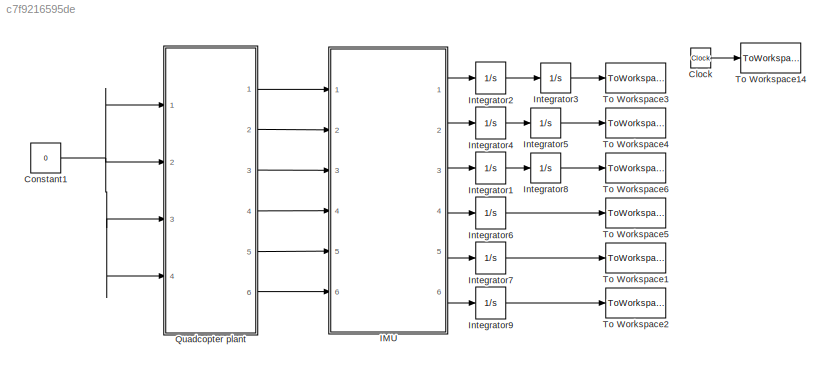
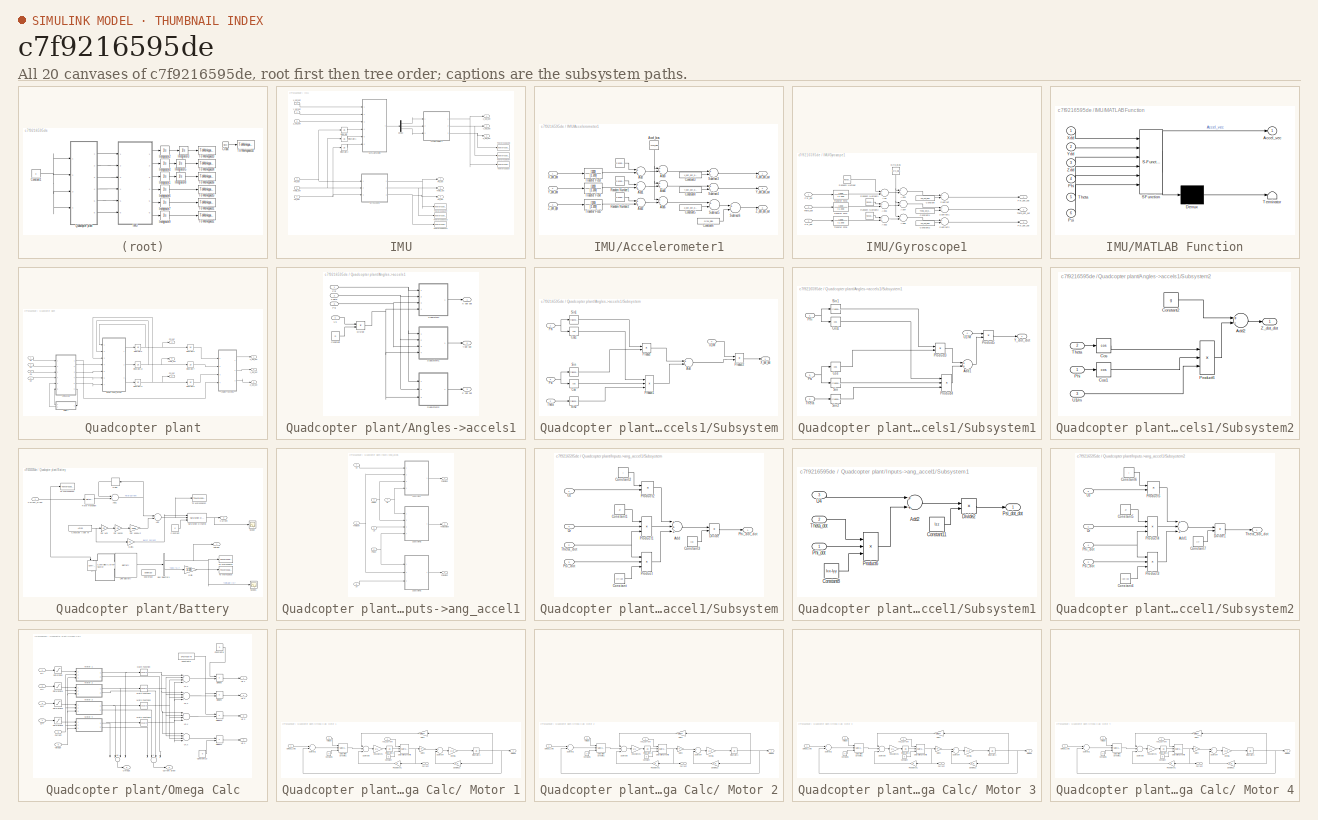
[diagram: thumbnail index - all 20 canvases of the model, root first then tree order]
MODEL slx_c7f9216595de
KIND model
CONFIG AbsTol = auto
CONFIG EnableMultiTasking = off
CONFIG FixedStep = 0.001
CONFIG MaxStep = 1e-4
CONFIG MinStep = auto
CONFIG RelTol = 1e-4
CONFIG SampleTimeConstraint = Unconstrained
CONFIG Solver = VariableStepAuto
CONFIG SolverName = VariableStepAuto
CONFIG StartTime = 0.0
CONFIG StopTime = TF
BLOCK [Clock] Clock
BLOCK [Constant] Constant1
  Value = 0
BLOCK [SubSystem] IMU
  Ports = [6, 6]
  RequestExecContextInheritance = off
  Variant = off
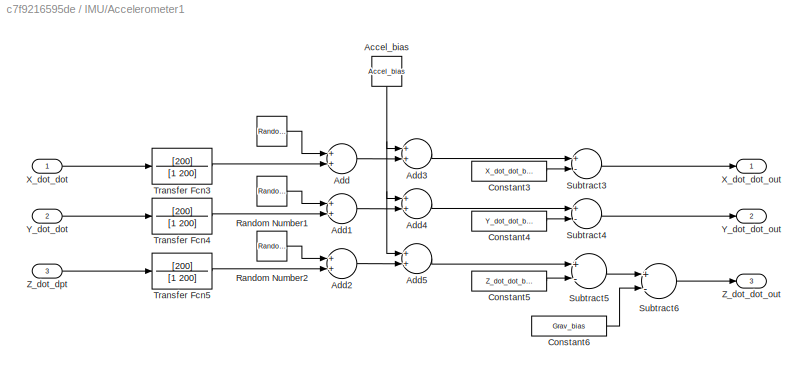
BLOCK [SubSystem] IMU/Accelerometer1
  Ports = [3, 3]
  RequestExecContextInheritance = off
  Variant = off
BLOCK [RandomNumber] IMU/Accelerometer1/ 
  SampleTime = 0.001
  Seed = 1
  Variance = 0.0001
BLOCK [Constant] IMU/Accelerometer1/Accel_bias
  Value = Accel_bias
BLOCK [Sum] IMU/Accelerometer1/Add
  InputSameDT = off
  OutDataTypeStr = Inherit: Inherit via internal rule
  Ports = [2, 1]
  SaturateOnIntegerOverflow = off
BLOCK [Sum] IMU/Accelerometer1/Add1
  InputSameDT = off
  OutDataTypeStr = Inherit: Inherit via internal rule
  Ports = [2, 1]
  SaturateOnIntegerOverflow = off
BLOCK [Sum] IMU/Accelerometer1/Add2
  InputSameDT = off
  OutDataTypeStr = Inherit: Inherit via internal rule
  Ports = [2, 1]
  SaturateOnIntegerOverflow = off
BLOCK [Sum] IMU/Accelerometer1/Add3
  InputSameDT = off
  OutDataTypeStr = Inherit: Inherit via internal rule
  Ports = [2, 1]
  SaturateOnIntegerOverflow = off
BLOCK [Sum] IMU/Accelerometer1/Add4
  InputSameDT = off
  OutDataTypeStr = Inherit: Inherit via internal rule
  Ports = [2, 1]
  SaturateOnIntegerOverflow = off
BLOCK [Sum] IMU/Accelerometer1/Add5
  InputSameDT = off
  OutDataTypeStr = Inherit: Inherit via internal rule
  Ports = [2, 1]
  SaturateOnIntegerOverflow = off
BLOCK [Constant] IMU/Accelerometer1/Constant3
  Value = X_dot_dot_bias
BLOCK [Constant] IMU/Accelerometer1/Constant4
  Value = Y_dot_dot_bias
BLOCK [Constant] IMU/Accelerometer1/Constant5
  Value = Z_dot_dot_bias
BLOCK [Constant] IMU/Accelerometer1/Constant6
  Value = Grav_bias
BLOCK [RandomNumber] IMU/Accelerometer1/Random Number1
  SampleTime = 0.001
  Seed = 2
  Variance = 0.0001
BLOCK [RandomNumber] IMU/Accelerometer1/Random Number2
  Mean = 0.000
  SampleTime = 0.001
  Seed = 3
  Variance = 0.0001
BLOCK [Sum] IMU/Accelerometer1/Subtract3
  InputSameDT = off
  Inputs = +-
  OutDataTypeStr = Inherit: Inherit via internal rule
  Ports = [2, 1]
  SaturateOnIntegerOverflow = off
BLOCK [Sum] IMU/Accelerometer1/Subtract4
  InputSameDT = off
  Inputs = +-
  OutDataTypeStr = Inherit: Inherit via internal rule
  Ports = [2, 1]
  SaturateOnIntegerOverflow = off
BLOCK [Sum] IMU/Accelerometer1/Subtract5
  InputSameDT = off
  Inputs = +-
  OutDataTypeStr = Inherit: Inherit via internal rule
  Ports = [2, 1]
  SaturateOnIntegerOverflow = off
BLOCK [Sum] IMU/Accelerometer1/Subtract6
  InputSameDT = off
  Inputs = +-
  OutDataTypeStr = Inherit: Inherit via internal rule
  Ports = [2, 1]
  SaturateOnIntegerOverflow = off
BLOCK [TransferFcn] IMU/Accelerometer1/Transfer Fcn3
  Denominator = [1 200]
  Numerator = [200]
BLOCK [TransferFcn] IMU/Accelerometer1/Transfer Fcn4
  Denominator = [1 200]
  Numerator = [200]
BLOCK [TransferFcn] IMU/Accelerometer1/Transfer Fcn5
  Denominator = [1 200]
  Numerator = [200]
BLOCK [Inport] IMU/Accelerometer1/X_dot_dot
  IconDisplay = Port number
BLOCK [Outport] IMU/Accelerometer1/X_dot_dot_out
  IconDisplay = Port number
BLOCK [Inport] IMU/Accelerometer1/Y_dot_dot 
  IconDisplay = Port number
  Port = 2
BLOCK [Outport] IMU/Accelerometer1/Y_dot_dot_out
  IconDisplay = Port number
  Port = 2
BLOCK [Outport] IMU/Accelerometer1/Z_dot_dot_out
  IconDisplay = Port number
  Port = 3
BLOCK [Inport] IMU/Accelerometer1/Z_dot_dpt 
  IconDisplay = Port number
  Port = 3
BLOCK [Demux] IMU/Demux
  DisplayOption = bar
  Outputs = 3
  Ports = [1, 3]
BLOCK [SubSystem] IMU/Gyroscope1
  Ports = [3, 3]
  RequestExecContextInheritance = off
  Variant = off
BLOCK [Sum] IMU/Gyroscope1/Add
  InputSameDT = off
  OutDataTypeStr = Inherit: Inherit via internal rule
  Ports = [2, 1]
  SaturateOnIntegerOverflow = off
BLOCK [Sum] IMU/Gyroscope1/Add1
  InputSameDT = off
  OutDataTypeStr = Inherit: Inherit via internal rule
  Ports = [2, 1]
  SaturateOnIntegerOverflow = off
BLOCK [Sum] IMU/Gyroscope1/Add2
  InputSameDT = off
  OutDataTypeStr = Inherit: Inherit via internal rule
  Ports = [2, 1]
  SaturateOnIntegerOverflow = off
BLOCK [Sum] IMU/Gyroscope1/Add3
  InputSameDT = off
  OutDataTypeStr = Inherit: Inherit via internal rule
  Ports = [2, 1]
  SaturateOnIntegerOverflow = off
BLOCK [Sum] IMU/Gyroscope1/Add4
  InputSameDT = off
  OutDataTypeStr = Inherit: Inherit via internal rule
  Ports = [2, 1]
  SaturateOnIntegerOverflow = off
BLOCK [Sum] IMU/Gyroscope1/Add5
  InputSameDT = off
  OutDataTypeStr = Inherit: Inherit via internal rule
  Ports = [2, 1]
  SaturateOnIntegerOverflow = off
BLOCK [Constant] IMU/Gyroscope1/Constant
  Value = Phi_dot_bias
BLOCK [Constant] IMU/Gyroscope1/Constant1
  Value = Theta_dot_bias
BLOCK [Constant] IMU/Gyroscope1/Constant2
  Value = Psi_dot_bias
BLOCK [Constant] IMU/Gyroscope1/Gyro_bias
  Value = Gyro_bias
BLOCK [Inport] IMU/Gyroscope1/Phi_dot
  IconDisplay = Port number
BLOCK [Outport] IMU/Gyroscope1/Phi_dot_out
  IconDisplay = Port number
BLOCK [Inport] IMU/Gyroscope1/Psi_dot
  IconDisplay = Port number
  Port = 3
BLOCK [Outport] IMU/Gyroscope1/Psi_dot_out
  IconDisplay = Port number
  Port = 3
BLOCK [RandomNumber] IMU/Gyroscope1/Random Number
  SampleTime = 0.001
  Seed = 4
  Variance = 0.0001
BLOCK [RandomNumber] IMU/Gyroscope1/Random Number1
  SampleTime = 0.001
  Seed = 5
  Variance = 0.0001
BLOCK [RandomNumber] IMU/Gyroscope1/Random Number2
  SampleTime = 0.001
  Seed = 6
  Variance = 0.0001
BLOCK [Sum] IMU/Gyroscope1/Subtract
  InputSameDT = off
  Inputs = +-
  OutDataTypeStr = Inherit: Inherit via internal rule
  Ports = [2, 1]
  SaturateOnIntegerOverflow = off
BLOCK [Sum] IMU/Gyroscope1/Subtract1
  InputSameDT = off
  Inputs = +-
  OutDataTypeStr = Inherit: Inherit via internal rule
  Ports = [2, 1]
  SaturateOnIntegerOverflow = off
BLOCK [Sum] IMU/Gyroscope1/Subtract2
  InputSameDT = off
  Inputs = +-
  OutDataTypeStr = Inherit: Inherit via internal rule
  Ports = [2, 1]
  SaturateOnIntegerOverflow = off
BLOCK [Inport] IMU/Gyroscope1/Theta_dot
  IconDisplay = Port number
  Port = 2
BLOCK [Outport] IMU/Gyroscope1/Theta_dot_out
  IconDisplay = Port number
  Port = 2
BLOCK [TransferFcn] IMU/Gyroscope1/Transfer Fcn3
  Denominator = [1 200]
  Numerator = [200]
BLOCK [TransferFcn] IMU/Gyroscope1/Transfer Fcn4
  Denominator = [1 200]
  Numerator = [200]
BLOCK [TransferFcn] IMU/Gyroscope1/Transfer Fcn5
  Denominator = [1 200]
  Numerator = [200]
BLOCK [Integrator] IMU/Integrator
  Ports = [1, 1]
  WrapState = on
BLOCK [Integrator] IMU/Integrator1
  Ports = [1, 1]
  WrapState = on
BLOCK [Integrator] IMU/Integrator2
  Ports = [1, 1]
BLOCK [SubSystem] IMU/MATLAB Function
  ErrorFcn = Stateflow.Translate.translate
  PermitHierarchicalResolution = ExplicitOnly
  Ports = [6, 1]
  RequestExecContextInheritance = off
  SFBlockType = MATLAB Function
  TreatAsAtomicUnit = on
  Variant = off
BLOCK [Demux] IMU/MATLAB Function/ Demux 
  Outputs = 1
  Ports = [1, 1]
BLOCK [S-Function] IMU/MATLAB Function/ SFunction 
  EnableBusSupport = on
  FunctionName = sf_sfun
  PortCounts = [6 2]
  Ports = [6, 2]
  SFcnIsStateOwnerBlock = off
  SFunctionDeploymentMode = off
  Tag = Stateflow S-Function Plant_Model_W_Sensors_Un_biased 2
BLOCK [Terminator] IMU/MATLAB Function/ Terminator 
BLOCK [Outport] IMU/MATLAB Function/Accel_vec
  IconDisplay = Port number
BLOCK [Inport] IMU/MATLAB Function/Phi
  IconDisplay = Port number
  Port = 4
BLOCK [Inport] IMU/MATLAB Function/Psi
  IconDisplay = Port number
  Port = 6
BLOCK [Inport] IMU/MATLAB Function/Theta
  IconDisplay = Port number
  Port = 5
BLOCK [Inport] IMU/MATLAB Function/Xdd
  IconDisplay = Port number
BLOCK [Inport] IMU/MATLAB Function/Ydd
  IconDisplay = Port number
  Port = 2
BLOCK [Inport] IMU/MATLAB Function/Zdd
  IconDisplay = Port number
  Port = 3
BLOCK [Inport] IMU/Phi_dot
  IconDisplay = Port number
  Port = 4
BLOCK [Outport] IMU/Phi_dot 
  IconDisplay = Port number
  Port = 4
BLOCK [Inport] IMU/Psi_dot
  IconDisplay = Port number
  Port = 6
BLOCK [Outport] IMU/Psi_dot 
  IconDisplay = Port number
  Port = 6
BLOCK [Inport] IMU/Theta_dot
  IconDisplay = Port number
  Port = 5
BLOCK [Outport] IMU/Theta_dot 
  IconDisplay = Port number
  Port = 5
BLOCK [ToWorkspace] IMU/To Workspace
  FixptAsFi = on
  MaxDataPoints = inf
  Ports = [1]
  SampleTime = 0.001
  Save2DSignal = 2-D array (concatenate along first dimension)
  VariableName = X_dot_dot_B
BLOCK [ToWorkspace] IMU/To Workspace10
  FixptAsFi = on
  MaxDataPoints = inf
  Ports = [1]
  SampleTime = 0.001
  Save2DSignal = 2-D array (concatenate along first dimension)
  VariableName = Theta_dot_B
BLOCK [ToWorkspace] IMU/To Workspace11
  FixptAsFi = on
  MaxDataPoints = inf
  Ports = [1]
  SampleTime = 0.001
  Save2DSignal = 2-D array (concatenate along first dimension)
  VariableName = Psi_dot_B
BLOCK [ToWorkspace] IMU/To Workspace7
  FixptAsFi = on
  MaxDataPoints = inf
  Ports = [1]
  SampleTime = 0.001
  Save2DSignal = 2-D array (concatenate along first dimension)
  VariableName = Y_dot_dot_B
BLOCK [ToWorkspace] IMU/To Workspace8
  FixptAsFi = on
  MaxDataPoints = inf
  Ports = [1]
  SampleTime = 0.001
  Save2DSignal = 2-D array (concatenate along first dimension)
  VariableName = Z_dot_dot_B
BLOCK [ToWorkspace] IMU/To Workspace9
  FixptAsFi = on
  MaxDataPoints = inf
  Ports = [1]
  SampleTime = 0.001
  Save2DSignal = 2-D array (concatenate along first dimension)
  VariableName = Phi_dot_B
BLOCK [Inport] IMU/X_dot_dot
  IconDisplay = Port number
BLOCK [Outport] IMU/X_dot_dot 
  IconDisplay = Port number
BLOCK [Inport] IMU/Y_dot_dot
  IconDisplay = Port number
  Port = 2
BLOCK [Outport] IMU/Y_dot_dot 
  IconDisplay = Port number
  Port = 2
BLOCK [Inport] IMU/Z_dot_dot
  IconDisplay = Port number
  Port = 3
BLOCK [Outport] IMU/Z_dot_dot 
  IconDisplay = Port number
  Port = 3
BLOCK [Integrator] Integrator1
  Ports = [1, 1]
BLOCK [Integrator] Integrator2
  Ports = [1, 1]
BLOCK [Integrator] Integrator3
  Ports = [1, 1]
BLOCK [Integrator] Integrator4
  Ports = [1, 1]
BLOCK [Integrator] Integrator5
  Ports = [1, 1]
BLOCK [Integrator] Integrator6
  Ports = [1, 1]
  WrapState = on
BLOCK [Integrator] Integrator7
  Ports = [1, 1]
  WrapState = on
BLOCK [Integrator] Integrator8
  LimitOutput = on
  Ports = [1, 1]
  UpperSaturationLimit = 0
BLOCK [Integrator] Integrator9
  Ports = [1, 1]
BLOCK [SubSystem] Quadcopter plant
  Ports = [4, 6]
  RequestExecContextInheritance = off
  Variant = off
BLOCK [SubSystem] Quadcopter plant/Angles->accels1
  Ports = [4, 3]
  RequestExecContextInheritance = off
  Variant = off
BLOCK [Constant] Quadcopter plant/Angles->accels1/Constant
  Value = m
BLOCK [Product] Quadcopter plant/Angles->accels1/Divide
  InputSameDT = off
  Inputs = */
  OutDataTypeStr = Inherit: Inherit via internal rule
  Ports = [2, 1]
  RndMeth = Floor
  SaturateOnIntegerOverflow = off
BLOCK [Inport] Quadcopter plant/Angles->accels1/Phi
  IconDisplay = Port number
BLOCK [Inport] Quadcopter plant/Angles->accels1/Psi
  IconDisplay = Port number
  Port = 3
BLOCK [SubSystem] Quadcopter plant/Angles->accels1/Subsystem
  Ports = [4, 1]
  RequestExecContextInheritance = off
  Variant = off
BLOCK [Sum] Quadcopter plant/Angles->accels1/Subsystem/Add
  InputSameDT = off
  Inputs = +-
  OutDataTypeStr = Inherit: Inherit via internal rule
  Ports = [2, 1]
  SaturateOnIntegerOverflow = off
BLOCK [Trigonometry] Quadcopter plant/Angles->accels1/Subsystem/Cos
  Operator = cos
  Ports = [1, 1]
BLOCK [Trigonometry] Quadcopter plant/Angles->accels1/Subsystem/Cos1
  Operator = cos
  Ports = [1, 1]
BLOCK [Inport] Quadcopter plant/Angles->accels1/Subsystem/Phi
  IconDisplay = Port number
BLOCK [Product] Quadcopter plant/Angles->accels1/Subsystem/Product
  InputSameDT = off
  OutDataTypeStr = Inherit: Inherit via internal rule
  Ports = [2, 1]
  RndMeth = Floor
  SaturateOnIntegerOverflow = off
BLOCK [Product] Quadcopter plant/Angles->accels1/Subsystem/Product1
  InputSameDT = off
  Inputs = 3
  OutDataTypeStr = Inherit: Inherit via internal rule
  Ports = [3, 1]
  RndMeth = Floor
  SaturateOnIntegerOverflow = off
BLOCK [Product] Quadcopter plant/Angles->accels1/Subsystem/Product2
  InputSameDT = off
  OutDataTypeStr = Inherit: Inherit via internal rule
  Ports = [2, 1]
  RndMeth = Floor
  SaturateOnIntegerOverflow = off
BLOCK [Inport] Quadcopter plant/Angles->accels1/Subsystem/Psi
  IconDisplay = Port number
  Port = 3
BLOCK [Trigonometry] Quadcopter plant/Angles->accels1/Subsystem/Sin
  Ports = [1, 1]
BLOCK [Trigonometry] Quadcopter plant/Angles->accels1/Subsystem/Sin1
  Ports = [1, 1]
BLOCK [Trigonometry] Quadcopter plant/Angles->accels1/Subsystem/Sin2
  Ports = [1, 1]
BLOCK [Inport] Quadcopter plant/Angles->accels1/Subsystem/Theta
  IconDisplay = Port number
  Port = 2
BLOCK [Inport] Quadcopter plant/Angles->accels1/Subsystem/U1//M
  IconDisplay = Port number
  Port = 4
BLOCK [Outport] Quadcopter plant/Angles->accels1/Subsystem/X_dot_dot
  IconDisplay = Port number
BLOCK [SubSystem] Quadcopter plant/Angles->accels1/Subsystem1
  Ports = [4, 1]
  RequestExecContextInheritance = off
  Variant = off
BLOCK [Sum] Quadcopter plant/Angles->accels1/Subsystem1/Add1
  InputSameDT = off
  OutDataTypeStr = Inherit: Inherit via internal rule
  Ports = [2, 1]
  SaturateOnIntegerOverflow = off
BLOCK [Trigonometry] Quadcopter plant/Angles->accels1/Subsystem1/Cos
  Operator = cos
  Ports = [1, 1]
BLOCK [Trigonometry] Quadcopter plant/Angles->accels1/Subsystem1/Cos1
  Operator = cos
  Ports = [1, 1]
BLOCK [Inport] Quadcopter plant/Angles->accels1/Subsystem1/Phi
  IconDisplay = Port number
BLOCK [Product] Quadcopter plant/Angles->accels1/Subsystem1/Product3
  InputSameDT = off
  OutDataTypeStr = Inherit: Inherit via internal rule
  Ports = [2, 1]
  RndMeth = Floor
  SaturateOnIntegerOverflow = off
BLOCK [Product] Quadcopter plant/Angles->accels1/Subsystem1/Product4
  InputSameDT = off
  Inputs = 3
  OutDataTypeStr = Inherit: Inherit via internal rule
  Ports = [3, 1]
  RndMeth = Floor
  SaturateOnIntegerOverflow = off
BLOCK [Product] Quadcopter plant/Angles->accels1/Subsystem1/Product5
  InputSameDT = off
  OutDataTypeStr = Inherit: Inherit via internal rule
  Ports = [2, 1]
  RndMeth = Floor
  SaturateOnIntegerOverflow = off
BLOCK [Inport] Quadcopter plant/Angles->accels1/Subsystem1/Psi
  IconDisplay = Port number
  Port = 3
BLOCK [Trigonometry] Quadcopter plant/Angles->accels1/Subsystem1/Sin
  Ports = [1, 1]
BLOCK [Trigonometry] Quadcopter plant/Angles->accels1/Subsystem1/Sin1
  Ports = [1, 1]
BLOCK [Trigonometry] Quadcopter plant/Angles->accels1/Subsystem1/Sin2
  Ports = [1, 1]
BLOCK [Inport] Quadcopter plant/Angles->accels1/Subsystem1/Theta
  IconDisplay = Port number
  Port = 2
BLOCK [Inport] Quadcopter plant/Angles->accels1/Subsystem1/U1//M
  IconDisplay = Port number
  Port = 4
BLOCK [Outport] Quadcopter plant/Angles->accels1/Subsystem1/Y_dot_dot
  IconDisplay = Port number
BLOCK [SubSystem] Quadcopter plant/Angles->accels1/Subsystem2
  Ports = [3, 1]
  RequestExecContextInheritance = off
  Variant = off
BLOCK [Sum] Quadcopter plant/Angles->accels1/Subsystem2/Add2
  InputSameDT = off
  Inputs = +-
  OutDataTypeStr = Inherit: Inherit via internal rule
  Ports = [2, 1]
  SaturateOnIntegerOverflow = off
BLOCK [Constant] Quadcopter plant/Angles->accels1/Subsystem2/Constant2
  Value = g
BLOCK [Trigonometry] Quadcopter plant/Angles->accels1/Subsystem2/Cos
  Operator = cos
  Ports = [1, 1]
BLOCK [Trigonometry] Quadcopter plant/Angles->accels1/Subsystem2/Cos1
  Operator = cos
  Ports = [1, 1]
BLOCK [Inport] Quadcopter plant/Angles->accels1/Subsystem2/Phi
  IconDisplay = Port number
BLOCK [Product] Quadcopter plant/Angles->accels1/Subsystem2/Product6
  InputSameDT = off
  Inputs = 3
  OutDataTypeStr = Inherit: Inherit via internal rule
  Ports = [3, 1]
  RndMeth = Floor
  SaturateOnIntegerOverflow = off
BLOCK [Inport] Quadcopter plant/Angles->accels1/Subsystem2/Theta
  IconDisplay = Port number
  Port = 2
BLOCK [Inport] Quadcopter plant/Angles->accels1/Subsystem2/U1//m
  IconDisplay = Port number
  Port = 3
BLOCK [Outport] Quadcopter plant/Angles->accels1/Subsystem2/Z_dot_dot
  IconDisplay = Port number
BLOCK [Inport] Quadcopter plant/Angles->accels1/Theta
  IconDisplay = Port number
  Port = 2
BLOCK [Inport] Quadcopter plant/Angles->accels1/U1
  IconDisplay = Port number
  Port = 4
BLOCK [Outport] Quadcopter plant/Angles->accels1/X dot dot
  IconDisplay = Port number
BLOCK [Outport] Quadcopter plant/Angles->accels1/Ydot dot
  IconDisplay = Port number
  Port = 2
BLOCK [Outport] Quadcopter plant/Angles->accels1/Z dot dot
  IconDisplay = Port number
  Port = 3
BLOCK [SubSystem] Quadcopter plant/Battery
  Ports = [1, 2]
  RequestExecContextInheritance = off
  Variant = off
BLOCK [Sum] Quadcopter plant/Battery/Add
  InputSameDT = off
  Inputs = -+
  OutDataTypeStr = Inherit: Inherit via internal rule
  Ports = [2, 1]
  SaturateOnIntegerOverflow = off
BLOCK [Sum] Quadcopter plant/Battery/Add1
  InputSameDT = off
  OutDataTypeStr = Inherit: Inherit via internal rule
  Ports = [2, 1]
  SaturateOnIntegerOverflow = off
BLOCK [BusSelector] Quadcopter plant/Battery/Bus Selector1
  OutputAsBus = off
  OutputSignals = Voltage (V),SOC (%)
  Ports = [1, 2]
BLOCK [Constant] Quadcopter plant/Battery/Constant
  Value = 0
BLOCK [Constant] Quadcopter plant/Battery/Constant A per hr
  Value = Amps
BLOCK [Reference] Quadcopter plant/Battery/Controlled Current Source  REF=powerlib/Electrical
Sources/Controlled Current Source
  Ports = [1, 0, 0, 0, 0, 1, 1]
  SourceBlock = powerlib/Electrical\nSources/Controlled Current Source
  SourceProductBaseCode = PS
  SourceProductName = Simscape Power Systems
  SourceType = Controlled Current Source
BLOCK [Outport] Quadcopter plant/Battery/Current
  IconDisplay = Port number
  Port = 2
BLOCK [Inport] Quadcopter plant/Battery/Current_Draw
  IconDisplay = Port number
BLOCK [Delay] Quadcopter plant/Battery/Delay
  DelayLength = 1
  InitialCondition = 0
  InputPortMap = u0
  Ports = [1, 1]
BLOCK [Gain] Quadcopter plant/Battery/Gain
  Gain = 1/100
  OutDataTypeStr = Inherit: Inherit via internal rule
  ParamDataTypeStr = Inherit: Inherit via internal rule
  SaturateOnIntegerOverflow = off
BLOCK [Gain] Quadcopter plant/Battery/Gain1
  Gain = PD
  OutDataTypeStr = Inherit: Inherit via internal rule
  ParamDataTypeStr = Inherit: Inherit via internal rule
  SaturateOnIntegerOverflow = off
BLOCK [Reference] Quadcopter plant/Battery/LiPo Battery   REF=electricdrivelib/Extra Sources/Battery
  Ports = [0, 1, 0, 0, 0, 2]
  SourceBlock = electricdrivelib/Extra Sources/Battery
  SourceProductBaseCode = PS
  SourceProductName = Simscape Power Systems
  SourceType = Battery
BLOCK [Gain] Quadcopter plant/Battery/Per 1000Hz
  Gain = 1000
  OutDataTypeStr = Inherit: Inherit via internal rule
  ParamDataTypeStr = Inherit: Inherit via internal rule
  SaturateOnIntegerOverflow = off
BLOCK [Gain] Quadcopter plant/Battery/Per Min
  Gain = 60
  OutDataTypeStr = Inherit: Inherit via internal rule
  ParamDataTypeStr = Inherit: Inherit via internal rule
  SaturateOnIntegerOverflow = off
BLOCK [Gain] Quadcopter plant/Battery/Per secon
  Gain = 60
  OutDataTypeStr = Inherit: Inherit via internal rule
  ParamDataTypeStr = Inherit: Inherit via internal rule
  SaturateOnIntegerOverflow = off
BLOCK [RateTransition] Quadcopter plant/Battery/Rate Transition
  OutPortSampleTime = 0.001
  OutPortSampleTimeMultiple = 0
BLOCK [Reference] Quadcopter plant/Battery/Saturation Dynamic  REF=simulink/Discontinuities/Saturation
Dynamic
  Ports = [3, 1]
  SourceBlock = simulink/Discontinuities/Saturation\nDynamic
  SourceProductBaseCode = SL
  SourceProductName = Simulink
  SourceType = Saturation Dynamic
BLOCK [Scope] Quadcopter plant/Battery/Scope
  NumInputPorts = 1
  Ports = [1]
  ScopeSpecificationString = Simulink.scopes.TimeScopeBlockCfg('CurrentConfiguration', extmgr.ConfigurationSet(extmgr.Configuration('Core','General UI',true),extmgr.Configuration('Core','Source UI',true),extmgr.Configuration('Sources','WiredSimulink',true,'DataLoggingVariableName','ScopeData1'),extmgr.Configuration('Visuals','Time Domain',true,'SerializedDisplays',{struct('MinYLimReal','74.00000','MaxYLimReal','94.00000','YLa...<+1412ch>
BLOCK [Scope] Quadcopter plant/Battery/Scope1
  NumInputPorts = 1
  Ports = [1]
  ScopeSpecificationString = Simulink.scopes.TimeScopeBlockCfg('CurrentConfiguration', extmgr.ConfigurationSet(extmgr.Configuration('Core','General UI',true),extmgr.Configuration('Core','Source UI',true),extmgr.Configuration('Sources','WiredSimulink',true,'DataLoggingVariableName','ScopeData2'),extmgr.Configuration('Visuals','Time Domain',true,'SerializedDisplays',{struct('MinYLimReal','9.06653','MaxYLimReal','12.25001','YLab...<+1422ch>
BLOCK [ToWorkspace] Quadcopter plant/Battery/To Workspace
  FixptAsFi = on
  MaxDataPoints = inf
  Ports = [1]
  SampleTime = .1
  Save2DSignal = 2-D array (concatenate along first dimension)
  VariableName = SOC
BLOCK [ToWorkspace] Quadcopter plant/Battery/To Workspace1
  FixptAsFi = on
  MaxDataPoints = inf
  Ports = [1]
  SampleTime = .1
  Save2DSignal = 2-D array (concatenate along first dimension)
  VariableName = Voltage
BLOCK [ToWorkspace] Quadcopter plant/Battery/To Workspace2
  FixptAsFi = on
  MaxDataPoints = inf
  Ports = [1]
  SampleTime = .1
  Save2DSignal = 2-D array (concatenate along first dimension)
  VariableName = Aval_Current
BLOCK [ToWorkspace] Quadcopter plant/Battery/To Workspace3
  FixptAsFi = on
  MaxDataPoints = inf
  Ports = [1]
  SampleTime = .1
  Save2DSignal = 2-D array (concatenate along first dimension)
  VariableName = Current_Draw
BLOCK [Outport] Quadcopter plant/Battery/Voltage
  IconDisplay = Port number
BLOCK [Reference] Quadcopter plant/Battery/powergui  REF=powerlib/powergui
  Ports = []
  SourceBlock = powerlib/powergui
  SourceProductBaseCode = PS
  SourceProductName = Simscape Power Systems
  SourceType = PSB option menu block
BLOCK [SubSystem] Quadcopter plant/Inputs->ang_accel1
  Ports = [7, 3]
  RequestExecContextInheritance = off
  Variant = off
BLOCK [Inport] Quadcopter plant/Inputs->ang_accel1/Phi dot
  IconDisplay = Port number
BLOCK [Outport] Quadcopter plant/Inputs->ang_accel1/Phi dot dot
  IconDisplay = Port number
BLOCK [Inport] Quadcopter plant/Inputs->ang_accel1/Psi dot
  IconDisplay = Port number
  Port = 3
BLOCK [Outport] Quadcopter plant/Inputs->ang_accel1/Psi dot dot
  IconDisplay = Port number
  Port = 3
BLOCK [SubSystem] Quadcopter plant/Inputs->ang_accel1/Subsystem
  Ports = [4, 1]
  RequestExecContextInheritance = off
  Variant = off
BLOCK [Sum] Quadcopter plant/Inputs->ang_accel1/Subsystem/Add
  InputSameDT = off
  Inputs = +++
  OutDataTypeStr = Inherit: Inherit via internal rule
  Ports = [3, 1]
  SaturateOnIntegerOverflow = off
BLOCK [Constant] Quadcopter plant/Inputs->ang_accel1/Subsystem/Constant
  Value = Iyy-Izz
BLOCK [Constant] Quadcopter plant/Inputs->ang_accel1/Subsystem/Constant1
  Value = Jr
BLOCK [Constant] Quadcopter plant/Inputs->ang_accel1/Subsystem/Constant2
  Value = l
BLOCK [Constant] Quadcopter plant/Inputs->ang_accel1/Subsystem/Constant3
  Value = Ixx
BLOCK [Product] Quadcopter plant/Inputs->ang_accel1/Subsystem/Divide
  InputSameDT = off
  Inputs = */
  OutDataTypeStr = Inherit: Inherit via internal rule
  Ports = [2, 1]
  RndMeth = Floor
  SaturateOnIntegerOverflow = off
BLOCK [Outport] Quadcopter plant/Inputs->ang_accel1/Subsystem/Phi_dot_dot
  IconDisplay = Port number
BLOCK [Product] Quadcopter plant/Inputs->ang_accel1/Subsystem/Product
  InputSameDT = off
  Inputs = 3
  OutDataTypeStr = Inherit: Inherit via internal rule
  Ports = [3, 1]
  RndMeth = Floor
  SaturateOnIntegerOverflow = off
BLOCK [Product] Quadcopter plant/Inputs->ang_accel1/Subsystem/Product1
  InputSameDT = off
  Inputs = 3
  OutDataTypeStr = Inherit: Inherit via internal rule
  Ports = [3, 1]
  RndMeth = Floor
  SaturateOnIntegerOverflow = off
BLOCK [Product] Quadcopter plant/Inputs->ang_accel1/Subsystem/Product2
  InputSameDT = off
  OutDataTypeStr = Inherit: Inherit via internal rule
  Ports = [2, 1]
  RndMeth = Floor
  SaturateOnIntegerOverflow = off
BLOCK [Inport] Quadcopter plant/Inputs->ang_accel1/Subsystem/Psi_dot
  IconDisplay = Port number
  Port = 3
BLOCK [Inport] Quadcopter plant/Inputs->ang_accel1/Subsystem/Theta_dot
  IconDisplay = Port number
  Port = 2
BLOCK [Inport] Quadcopter plant/Inputs->ang_accel1/Subsystem/U2
  IconDisplay = Port number
BLOCK [Inport] Quadcopter plant/Inputs->ang_accel1/Subsystem/Ωr
  IconDisplay = Port number
  Port = 4
BLOCK [SubSystem] Quadcopter plant/Inputs->ang_accel1/Subsystem1
  Ports = [3, 1]
  RequestExecContextInheritance = off
  Variant = off
BLOCK [Sum] Quadcopter plant/Inputs->ang_accel1/Subsystem1/Add2
  InputSameDT = off
  OutDataTypeStr = Inherit: Inherit via internal rule
  Ports = [2, 1]
  SaturateOnIntegerOverflow = off
BLOCK [Constant] Quadcopter plant/Inputs->ang_accel1/Subsystem1/Constant11
  Value = Izz
BLOCK [Constant] Quadcopter plant/Inputs->ang_accel1/Subsystem1/Constant8
  Value = Ixx-Iyy
BLOCK [Product] Quadcopter plant/Inputs->ang_accel1/Subsystem1/Divide2
  InputSameDT = off
  Inputs = */
  OutDataTypeStr = Inherit: Inherit via internal rule
  Ports = [2, 1]
  RndMeth = Floor
  SaturateOnIntegerOverflow = off
BLOCK [Inport] Quadcopter plant/Inputs->ang_accel1/Subsystem1/Phi_dot
  IconDisplay = Port number
BLOCK [Product] Quadcopter plant/Inputs->ang_accel1/Subsystem1/Product6
  InputSameDT = off
  Inputs = 3
  OutDataTypeStr = Inherit: Inherit via internal rule
  Ports = [3, 1]
  RndMeth = Floor
  SaturateOnIntegerOverflow = off
BLOCK [Outport] Quadcopter plant/Inputs->ang_accel1/Subsystem1/Psi_dot_dot
  IconDisplay = Port number
BLOCK [Inport] Quadcopter plant/Inputs->ang_accel1/Subsystem1/Theta_dot
  IconDisplay = Port number
  Port = 2
BLOCK [Inport] Quadcopter plant/Inputs->ang_accel1/Subsystem1/U4
  IconDisplay = Port number
  Port = 3
BLOCK [SubSystem] Quadcopter plant/Inputs->ang_accel1/Subsystem2
  Ports = [4, 1]
  RequestExecContextInheritance = off
  Variant = off
BLOCK [Sum] Quadcopter plant/Inputs->ang_accel1/Subsystem2/Add1
  InputSameDT = off
  Inputs = +-+
  OutDataTypeStr = Inherit: Inherit via internal rule
  Ports = [3, 1]
  SaturateOnIntegerOverflow = off
BLOCK [Constant] Quadcopter plant/Inputs->ang_accel1/Subsystem2/Constant4
  Value = Izz-Ixx
BLOCK [Constant] Quadcopter plant/Inputs->ang_accel1/Subsystem2/Constant5
  Value = Jr
BLOCK [Constant] Quadcopter plant/Inputs->ang_accel1/Subsystem2/Constant6
  Value = l
BLOCK [Constant] Quadcopter plant/Inputs->ang_accel1/Subsystem2/Constant7
  Value = Iyy
BLOCK [Product] Quadcopter plant/Inputs->ang_accel1/Subsystem2/Divide1
  InputSameDT = off
  Inputs = */
  OutDataTypeStr = Inherit: Inherit via internal rule
  Ports = [2, 1]
  RndMeth = Floor
  SaturateOnIntegerOverflow = off
BLOCK [Inport] Quadcopter plant/Inputs->ang_accel1/Subsystem2/Phi_dot
  IconDisplay = Port number
  Port = 4
BLOCK [Product] Quadcopter plant/Inputs->ang_accel1/Subsystem2/Product3
  InputSameDT = off
  Inputs = 3
  OutDataTypeStr = Inherit: Inherit via internal rule
  Ports = [3, 1]
  RndMeth = Floor
  SaturateOnIntegerOverflow = off
BLOCK [Product] Quadcopter plant/Inputs->ang_accel1/Subsystem2/Product4
  InputSameDT = off
  Inputs = 3
  OutDataTypeStr = Inherit: Inherit via internal rule
  Ports = [3, 1]
  RndMeth = Floor
  SaturateOnIntegerOverflow = off
BLOCK [Product] Quadcopter plant/Inputs->ang_accel1/Subsystem2/Product5
  InputSameDT = off
  OutDataTypeStr = Inherit: Inherit via internal rule
  Ports = [2, 1]
  RndMeth = Floor
  SaturateOnIntegerOverflow = off
BLOCK [Inport] Quadcopter plant/Inputs->ang_accel1/Subsystem2/Psi_dot
  IconDisplay = Port number
  Port = 2
BLOCK [Outport] Quadcopter plant/Inputs->ang_accel1/Subsystem2/Theta_dot_dot
  IconDisplay = Port number
BLOCK [Inport] Quadcopter plant/Inputs->ang_accel1/Subsystem2/U3
  IconDisplay = Port number
  Port = 3
BLOCK [Inport] Quadcopter plant/Inputs->ang_accel1/Subsystem2/Ωr
  IconDisplay = Port number
BLOCK [Inport] Quadcopter plant/Inputs->ang_accel1/Theta dot
  IconDisplay = Port number
  Port = 2
BLOCK [Outport] Quadcopter plant/Inputs->ang_accel1/Theta dot dot
  IconDisplay = Port number
  Port = 2
BLOCK [Inport] Quadcopter plant/Inputs->ang_accel1/U2
  IconDisplay = Port number
  Port = 4
BLOCK [Inport] Quadcopter plant/Inputs->ang_accel1/U3
  IconDisplay = Port number
  Port = 5
BLOCK [Inport] Quadcopter plant/Inputs->ang_accel1/U4
  IconDisplay = Port number
  Port = 6
BLOCK [Inport] Quadcopter plant/Inputs->ang_accel1/Ωr
  IconDisplay = Port number
  Port = 7
BLOCK [Integrator] Quadcopter plant/Integrator10
  IgnoreLimit = on
  Ports = [1, 1]
BLOCK [Integrator] Quadcopter plant/Integrator11
  LowerSaturationLimit = -10000
  Ports = [1, 1]
  UpperSaturationLimit = 10000
BLOCK [Integrator] Quadcopter plant/Integrator6
  Ports = [1, 1]
  WrapState = on
BLOCK [Integrator] Quadcopter plant/Integrator7
  Ports = [1, 1]
  WrapState = on
BLOCK [Integrator] Quadcopter plant/Integrator8
  Ports = [1, 1]
BLOCK [Integrator] Quadcopter plant/Integrator9
  Ports = [1, 1]
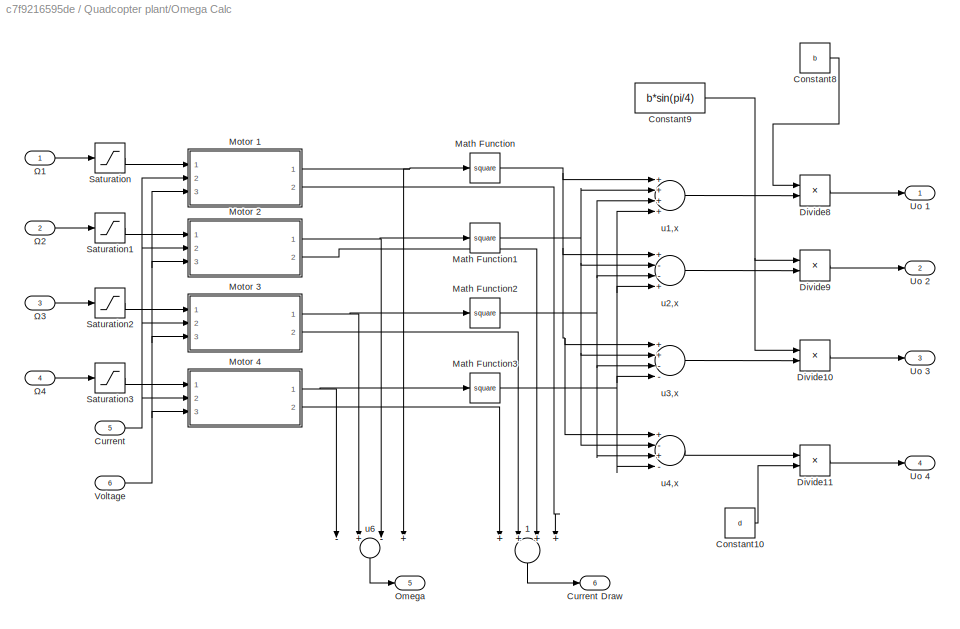
BLOCK [SubSystem] Quadcopter plant/Omega Calc
  Ports = [6, 6]
  RequestExecContextInheritance = off
  Variant = off
BLOCK [Sum] Quadcopter plant/Omega Calc/ 1
  InputSameDT = off
  Inputs = ++++
  OutDataTypeStr = Inherit: Inherit via internal rule
  Ports = [4, 1]
  SaturateOnIntegerOverflow = off
BLOCK [SubSystem] Quadcopter plant/Omega Calc/ Motor 1
  Ports = [3, 2]
  RequestExecContextInheritance = off
  Variant = off
BLOCK [Inport] Quadcopter plant/Omega Calc/ Motor 1/Aval_Current
  IconDisplay = Port number
  Port = 2
BLOCK [Constant] Quadcopter plant/Omega Calc/ Motor 1/Constant
  Value = 0
BLOCK [Constant] Quadcopter plant/Omega Calc/ Motor 1/Constant1
  Value = 0
BLOCK [Outport] Quadcopter plant/Omega Calc/ Motor 1/Current 
  IconDisplay = Port number
  Port = 2
BLOCK [Gain] Quadcopter plant/Omega Calc/ Motor 1/Damping1
  Gain = b_m
  OutDataTypeStr = Inherit: Inherit via internal rule
  ParamDataTypeStr = Inherit: Inherit via internal rule
  SaturateOnIntegerOverflow = off
BLOCK [Gain] Quadcopter plant/Omega Calc/ Motor 1/Gain3
  Gain = Kt
  OutDataTypeStr = Inherit: Inherit via internal rule
  ParamDataTypeStr = Inherit: Inherit via internal rule
  SaturateOnIntegerOverflow = off
BLOCK [Gain] Quadcopter plant/Omega Calc/ Motor 1/Gain4
  Gain = Kemf
  OutDataTypeStr = Inherit: Inherit via internal rule
  ParamDataTypeStr = Inherit: Inherit via internal rule
  SaturateOnIntegerOverflow = off
BLOCK [Gain] Quadcopter plant/Omega Calc/ Motor 1/Inductance1
  Gain = 1/L
  OutDataTypeStr = Inherit: Inherit via internal rule
  ParamDataTypeStr = Inherit: Inherit via internal rule
  SaturateOnIntegerOverflow = off
BLOCK [Gain] Quadcopter plant/Omega Calc/ Motor 1/Inertia1
  Gain = 1/Jr
  OutDataTypeStr = Inherit: Inherit via internal rule
  ParamDataTypeStr = Inherit: Inherit via internal rule
  SaturateOnIntegerOverflow = off
BLOCK [Integrator] Quadcopter plant/Omega Calc/ Motor 1/Integrator2
  LimitOutput = on
  LowerSaturationLimit = 0
  Ports = [1, 1]
BLOCK [Integrator] Quadcopter plant/Omega Calc/ Motor 1/Integrator3
  LimitOutput = on
  LowerSaturationLimit = 0
  Ports = [1, 1]
BLOCK [Outport] Quadcopter plant/Omega Calc/ Motor 1/Omega
  IconDisplay = Port number
BLOCK [Inport] Quadcopter plant/Omega Calc/ Motor 1/Omega_cmd
  IconDisplay = Port number
BLOCK [Gain] Quadcopter plant/Omega Calc/ Motor 1/Resistance1
  Gain = R
  OutDataTypeStr = Inherit: Inherit via internal rule
  ParamDataTypeStr = Inherit: Inherit via internal rule
  SaturateOnIntegerOverflow = off
BLOCK [Reference] Quadcopter plant/Omega Calc/ Motor 1/Saturation Dynamic  REF=simulink/Discontinuities/Saturation
Dynamic
  Ports = [3, 1]
  SourceBlock = simulink/Discontinuities/Saturation\nDynamic
  SourceProductBaseCode = SL
  SourceProductName = Simulink
  SourceType = Saturation Dynamic
BLOCK [Reference] Quadcopter plant/Omega Calc/ Motor 1/Saturation Dynamic1  REF=simulink/Discontinuities/Saturation
Dynamic
  Ports = [3, 1]
  SourceBlock = simulink/Discontinuities/Saturation\nDynamic
  SourceProductBaseCode = SL
  SourceProductName = Simulink
  SourceType = Saturation Dynamic
BLOCK [Sum] Quadcopter plant/Omega Calc/ Motor 1/Subtract1
  InputSameDT = off
  Inputs = +-
  OutDataTypeStr = Inherit: Inherit via internal rule
  Ports = [2, 1]
  SaturateOnIntegerOverflow = off
BLOCK [Sum] Quadcopter plant/Omega Calc/ Motor 1/Subtract4
  InputSameDT = off
  Inputs = +-
  OutDataTypeStr = Inherit: Inherit via internal rule
  Ports = [2, 1]
  SaturateOnIntegerOverflow = off
BLOCK [Sum] Quadcopter plant/Omega Calc/ Motor 1/Subtract5
  InputSameDT = off
  Inputs = -+-
  OutDataTypeStr = Inherit: Inherit via internal rule
  Ports = [3, 1]
  SaturateOnIntegerOverflow = off
BLOCK [Inport] Quadcopter plant/Omega Calc/ Motor 1/Voltage
  IconDisplay = Port number
  Port = 3
BLOCK [SubSystem] Quadcopter plant/Omega Calc/ Motor 2
  Ports = [3, 2]
  RequestExecContextInheritance = off
  Variant = off
BLOCK [Inport] Quadcopter plant/Omega Calc/ Motor 2/Aval_Current
  IconDisplay = Port number
  Port = 2
BLOCK [Constant] Quadcopter plant/Omega Calc/ Motor 2/Constant
  Value = 0
BLOCK [Constant] Quadcopter plant/Omega Calc/ Motor 2/Constant1
  Value = 0
BLOCK [Outport] Quadcopter plant/Omega Calc/ Motor 2/Current 
  IconDisplay = Port number
  Port = 2
BLOCK [Gain] Quadcopter plant/Omega Calc/ Motor 2/Damping1
  Gain = b_m
  OutDataTypeStr = Inherit: Inherit via internal rule
  ParamDataTypeStr = Inherit: Inherit via internal rule
  SaturateOnIntegerOverflow = off
BLOCK [Gain] Quadcopter plant/Omega Calc/ Motor 2/Gain3
  Gain = Kt
  OutDataTypeStr = Inherit: Inherit via internal rule
  ParamDataTypeStr = Inherit: Inherit via internal rule
  SaturateOnIntegerOverflow = off
BLOCK [Gain] Quadcopter plant/Omega Calc/ Motor 2/Gain4
  Gain = Kemf
  OutDataTypeStr = Inherit: Inherit via internal rule
  ParamDataTypeStr = Inherit: Inherit via internal rule
  SaturateOnIntegerOverflow = off
BLOCK [Gain] Quadcopter plant/Omega Calc/ Motor 2/Inductance1
  Gain = 1/L
  OutDataTypeStr = Inherit: Inherit via internal rule
  ParamDataTypeStr = Inherit: Inherit via internal rule
  SaturateOnIntegerOverflow = off
BLOCK [Gain] Quadcopter plant/Omega Calc/ Motor 2/Inertia1
  Gain = 1/Jr
  OutDataTypeStr = Inherit: Inherit via internal rule
  ParamDataTypeStr = Inherit: Inherit via internal rule
  SaturateOnIntegerOverflow = off
BLOCK [Integrator] Quadcopter plant/Omega Calc/ Motor 2/Integrator2
  LimitOutput = on
  LowerSaturationLimit = 0
  Ports = [1, 1]
BLOCK [Integrator] Quadcopter plant/Omega Calc/ Motor 2/Integrator3
  LimitOutput = on
  LowerSaturationLimit = 0
  Ports = [1, 1]
BLOCK [Outport] Quadcopter plant/Omega Calc/ Motor 2/Omega
  IconDisplay = Port number
BLOCK [Inport] Quadcopter plant/Omega Calc/ Motor 2/Omega_cmd
  IconDisplay = Port number
BLOCK [Gain] Quadcopter plant/Omega Calc/ Motor 2/Resistance1
  Gain = R
  OutDataTypeStr = Inherit: Inherit via internal rule
  ParamDataTypeStr = Inherit: Inherit via internal rule
  SaturateOnIntegerOverflow = off
BLOCK [Reference] Quadcopter plant/Omega Calc/ Motor 2/Saturation Dynamic  REF=simulink/Discontinuities/Saturation
Dynamic
  Ports = [3, 1]
  SourceBlock = simulink/Discontinuities/Saturation\nDynamic
  SourceProductBaseCode = SL
  SourceProductName = Simulink
  SourceType = Saturation Dynamic
BLOCK [Reference] Quadcopter plant/Omega Calc/ Motor 2/Saturation Dynamic1  REF=simulink/Discontinuities/Saturation
Dynamic
  Ports = [3, 1]
  SourceBlock = simulink/Discontinuities/Saturation\nDynamic
  SourceProductBaseCode = SL
  SourceProductName = Simulink
  SourceType = Saturation Dynamic
BLOCK [Sum] Quadcopter plant/Omega Calc/ Motor 2/Subtract1
  InputSameDT = off
  Inputs = +-
  OutDataTypeStr = Inherit: Inherit via internal rule
  Ports = [2, 1]
  SaturateOnIntegerOverflow = off
BLOCK [Sum] Quadcopter plant/Omega Calc/ Motor 2/Subtract4
  InputSameDT = off
  Inputs = +-
  OutDataTypeStr = Inherit: Inherit via internal rule
  Ports = [2, 1]
  SaturateOnIntegerOverflow = off
BLOCK [Sum] Quadcopter plant/Omega Calc/ Motor 2/Subtract5
  InputSameDT = off
  Inputs = -+-
  OutDataTypeStr = Inherit: Inherit via internal rule
  Ports = [3, 1]
  SaturateOnIntegerOverflow = off
BLOCK [Inport] Quadcopter plant/Omega Calc/ Motor 2/Voltage
  IconDisplay = Port number
  Port = 3
BLOCK [SubSystem] Quadcopter plant/Omega Calc/ Motor 3
  Ports = [3, 2]
  RequestExecContextInheritance = off
  Variant = off
BLOCK [Inport] Quadcopter plant/Omega Calc/ Motor 3/Aval_Current
  IconDisplay = Port number
  Port = 2
BLOCK [Constant] Quadcopter plant/Omega Calc/ Motor 3/Constant
  Value = 0
BLOCK [Constant] Quadcopter plant/Omega Calc/ Motor 3/Constant1
  Value = 0
BLOCK [Outport] Quadcopter plant/Omega Calc/ Motor 3/Current 
  IconDisplay = Port number
  Port = 2
BLOCK [Gain] Quadcopter plant/Omega Calc/ Motor 3/Damping1
  Gain = b_m
  OutDataTypeStr = Inherit: Inherit via internal rule
  ParamDataTypeStr = Inherit: Inherit via internal rule
  SaturateOnIntegerOverflow = off
BLOCK [Gain] Quadcopter plant/Omega Calc/ Motor 3/Gain3
  Gain = Kt
  OutDataTypeStr = Inherit: Inherit via internal rule
  ParamDataTypeStr = Inherit: Inherit via internal rule
  SaturateOnIntegerOverflow = off
BLOCK [Gain] Quadcopter plant/Omega Calc/ Motor 3/Gain4
  Gain = Kemf
  OutDataTypeStr = Inherit: Inherit via internal rule
  ParamDataTypeStr = Inherit: Inherit via internal rule
  SaturateOnIntegerOverflow = off
BLOCK [Gain] Quadcopter plant/Omega Calc/ Motor 3/Inductance1
  Gain = 1/L
  OutDataTypeStr = Inherit: Inherit via internal rule
  ParamDataTypeStr = Inherit: Inherit via internal rule
  SaturateOnIntegerOverflow = off
BLOCK [Gain] Quadcopter plant/Omega Calc/ Motor 3/Inertia1
  Gain = 1/Jr
  OutDataTypeStr = Inherit: Inherit via internal rule
  ParamDataTypeStr = Inherit: Inherit via internal rule
  SaturateOnIntegerOverflow = off
BLOCK [Integrator] Quadcopter plant/Omega Calc/ Motor 3/Integrator2
  LimitOutput = on
  LowerSaturationLimit = 0
  Ports = [1, 1]
BLOCK [Integrator] Quadcopter plant/Omega Calc/ Motor 3/Integrator3
  LimitOutput = on
  LowerSaturationLimit = 0
  Ports = [1, 1]
BLOCK [Outport] Quadcopter plant/Omega Calc/ Motor 3/Omega
  IconDisplay = Port number
BLOCK [Inport] Quadcopter plant/Omega Calc/ Motor 3/Omega_cmd
  IconDisplay = Port number
BLOCK [Gain] Quadcopter plant/Omega Calc/ Motor 3/Resistance1
  Gain = R
  OutDataTypeStr = Inherit: Inherit via internal rule
  ParamDataTypeStr = Inherit: Inherit via internal rule
  SaturateOnIntegerOverflow = off
BLOCK [Reference] Quadcopter plant/Omega Calc/ Motor 3/Saturation Dynamic  REF=simulink/Discontinuities/Saturation
Dynamic
  Ports = [3, 1]
  SourceBlock = simulink/Discontinuities/Saturation\nDynamic
  SourceProductBaseCode = SL
  SourceProductName = Simulink
  SourceType = Saturation Dynamic
BLOCK [Reference] Quadcopter plant/Omega Calc/ Motor 3/Saturation Dynamic1  REF=simulink/Discontinuities/Saturation
Dynamic
  Ports = [3, 1]
  SourceBlock = simulink/Discontinuities/Saturation\nDynamic
  SourceProductBaseCode = SL
  SourceProductName = Simulink
  SourceType = Saturation Dynamic
BLOCK [Sum] Quadcopter plant/Omega Calc/ Motor 3/Subtract1
  InputSameDT = off
  Inputs = +-
  OutDataTypeStr = Inherit: Inherit via internal rule
  Ports = [2, 1]
  SaturateOnIntegerOverflow = off
BLOCK [Sum] Quadcopter plant/Omega Calc/ Motor 3/Subtract4
  InputSameDT = off
  Inputs = +-
  OutDataTypeStr = Inherit: Inherit via internal rule
  Ports = [2, 1]
  SaturateOnIntegerOverflow = off
BLOCK [Sum] Quadcopter plant/Omega Calc/ Motor 3/Subtract5
  InputSameDT = off
  Inputs = -+-
  OutDataTypeStr = Inherit: Inherit via internal rule
  Ports = [3, 1]
  SaturateOnIntegerOverflow = off
BLOCK [Inport] Quadcopter plant/Omega Calc/ Motor 3/Voltage
  IconDisplay = Port number
  Port = 3
BLOCK [SubSystem] Quadcopter plant/Omega Calc/ Motor 4
  Ports = [3, 2]
  RequestExecContextInheritance = off
  Variant = off
BLOCK [Inport] Quadcopter plant/Omega Calc/ Motor 4/Aval_Current
  IconDisplay = Port number
  Port = 2
BLOCK [Constant] Quadcopter plant/Omega Calc/ Motor 4/Constant
  Value = 0
BLOCK [Constant] Quadcopter plant/Omega Calc/ Motor 4/Constant1
  Value = 0
BLOCK [Outport] Quadcopter plant/Omega Calc/ Motor 4/Current 
  IconDisplay = Port number
  Port = 2
BLOCK [Gain] Quadcopter plant/Omega Calc/ Motor 4/Damping1
  Gain = b_m
  OutDataTypeStr = Inherit: Inherit via internal rule
  ParamDataTypeStr = Inherit: Inherit via internal rule
  SaturateOnIntegerOverflow = off
BLOCK [Gain] Quadcopter plant/Omega Calc/ Motor 4/Gain3
  Gain = Kt
  OutDataTypeStr = Inherit: Inherit via internal rule
  ParamDataTypeStr = Inherit: Inherit via internal rule
  SaturateOnIntegerOverflow = off
BLOCK [Gain] Quadcopter plant/Omega Calc/ Motor 4/Gain4
  Gain = Kemf
  OutDataTypeStr = Inherit: Inherit via internal rule
  ParamDataTypeStr = Inherit: Inherit via internal rule
  SaturateOnIntegerOverflow = off
BLOCK [Gain] Quadcopter plant/Omega Calc/ Motor 4/Inductance1
  Gain = 1/L
  OutDataTypeStr = Inherit: Inherit via internal rule
  ParamDataTypeStr = Inherit: Inherit via internal rule
  SaturateOnIntegerOverflow = off
BLOCK [Gain] Quadcopter plant/Omega Calc/ Motor 4/Inertia1
  Gain = 1/Jr
  OutDataTypeStr = Inherit: Inherit via internal rule
  ParamDataTypeStr = Inherit: Inherit via internal rule
  SaturateOnIntegerOverflow = off
BLOCK [Integrator] Quadcopter plant/Omega Calc/ Motor 4/Integrator2
  LimitOutput = on
  LowerSaturationLimit = 0
  Ports = [1, 1]
BLOCK [Integrator] Quadcopter plant/Omega Calc/ Motor 4/Integrator3
  LimitOutput = on
  LowerSaturationLimit = 0
  Ports = [1, 1]
BLOCK [Outport] Quadcopter plant/Omega Calc/ Motor 4/Omega
  IconDisplay = Port number
BLOCK [Inport] Quadcopter plant/Omega Calc/ Motor 4/Omega_cmd
  IconDisplay = Port number
BLOCK [Gain] Quadcopter plant/Omega Calc/ Motor 4/Resistance1
  Gain = R
  OutDataTypeStr = Inherit: Inherit via internal rule
  ParamDataTypeStr = Inherit: Inherit via internal rule
  SaturateOnIntegerOverflow = off
BLOCK [Reference] Quadcopter plant/Omega Calc/ Motor 4/Saturation Dynamic  REF=simulink/Discontinuities/Saturation
Dynamic
  Ports = [3, 1]
  SourceBlock = simulink/Discontinuities/Saturation\nDynamic
  SourceProductBaseCode = SL
  SourceProductName = Simulink
  SourceType = Saturation Dynamic
BLOCK [Reference] Quadcopter plant/Omega Calc/ Motor 4/Saturation Dynamic1  REF=simulink/Discontinuities/Saturation
Dynamic
  Ports = [3, 1]
  SourceBlock = simulink/Discontinuities/Saturation\nDynamic
  SourceProductBaseCode = SL
  SourceProductName = Simulink
  SourceType = Saturation Dynamic
BLOCK [Sum] Quadcopter plant/Omega Calc/ Motor 4/Subtract1
  InputSameDT = off
  Inputs = +-
  OutDataTypeStr = Inherit: Inherit via internal rule
  Ports = [2, 1]
  SaturateOnIntegerOverflow = off
BLOCK [Sum] Quadcopter plant/Omega Calc/ Motor 4/Subtract4
  InputSameDT = off
  Inputs = +-
  OutDataTypeStr = Inherit: Inherit via internal rule
  Ports = [2, 1]
  SaturateOnIntegerOverflow = off
BLOCK [Sum] Quadcopter plant/Omega Calc/ Motor 4/Subtract5
  InputSameDT = off
  Inputs = -+-
  OutDataTypeStr = Inherit: Inherit via internal rule
  Ports = [3, 1]
  SaturateOnIntegerOverflow = off
BLOCK [Inport] Quadcopter plant/Omega Calc/ Motor 4/Voltage
  IconDisplay = Port number
  Port = 3
BLOCK [Constant] Quadcopter plant/Omega Calc/Constant10
  Value = d
BLOCK [Constant] Quadcopter plant/Omega Calc/Constant8
  Value = b
BLOCK [Constant] Quadcopter plant/Omega Calc/Constant9
  Value = b*sin(pi/4)
BLOCK [Inport] Quadcopter plant/Omega Calc/Current
  IconDisplay = Port number
  Port = 5
BLOCK [Outport] Quadcopter plant/Omega Calc/Current Draw
  IconDisplay = Port number
  Port = 6
BLOCK [Product] Quadcopter plant/Omega Calc/Divide10
  InputSameDT = off
  Inputs = **
  OutDataTypeStr = Inherit: Inherit via internal rule
  Ports = [2, 1]
  RndMeth = Floor
  SaturateOnIntegerOverflow = off
BLOCK [Product] Quadcopter plant/Omega Calc/Divide11
  InputSameDT = off
  Inputs = **
  OutDataTypeStr = Inherit: Inherit via internal rule
  Ports = [2, 1]
  RndMeth = Floor
  SaturateOnIntegerOverflow = off
BLOCK [Product] Quadcopter plant/Omega Calc/Divide8
  InputSameDT = off
  Inputs = **
  OutDataTypeStr = Inherit: Inherit via internal rule
  Ports = [2, 1]
  RndMeth = Floor
  SaturateOnIntegerOverflow = off
BLOCK [Product] Quadcopter plant/Omega Calc/Divide9
  InputSameDT = off
  Inputs = **
  OutDataTypeStr = Inherit: Inherit via internal rule
  Ports = [2, 1]
  RndMeth = Floor
  SaturateOnIntegerOverflow = off
BLOCK [Math] Quadcopter plant/Omega Calc/Math Function
  Operator = square
  Ports = [1, 1]
BLOCK [Math] Quadcopter plant/Omega Calc/Math Function1
  Operator = square
  Ports = [1, 1]
BLOCK [Math] Quadcopter plant/Omega Calc/Math Function2
  Operator = square
  Ports = [1, 1]
BLOCK [Math] Quadcopter plant/Omega Calc/Math Function3
  Operator = square
  Ports = [1, 1]
BLOCK [Outport] Quadcopter plant/Omega Calc/Omega
  IconDisplay = Port number
  Port = 5
BLOCK [Saturate] Quadcopter plant/Omega Calc/Saturation
  InputPortMap = u0
  LowerLimit = 0
  Ports = [1, 1]
  UpperLimit = inf
BLOCK [Saturate] Quadcopter plant/Omega Calc/Saturation1
  InputPortMap = u0
  LowerLimit = 0
  Ports = [1, 1]
  UpperLimit = inf
BLOCK [Saturate] Quadcopter plant/Omega Calc/Saturation2
  InputPortMap = u0
  LowerLimit = 0
  Ports = [1, 1]
  UpperLimit = inf
BLOCK [Saturate] Quadcopter plant/Omega Calc/Saturation3
  InputPortMap = u0
  LowerLimit = 0
  Ports = [1, 1]
  UpperLimit = inf
BLOCK [Outport] Quadcopter plant/Omega Calc/Uo 1
  IconDisplay = Port number
BLOCK [Outport] Quadcopter plant/Omega Calc/Uo 2
  IconDisplay = Port number
  Port = 2
BLOCK [Outport] Quadcopter plant/Omega Calc/Uo 3
  IconDisplay = Port number
  Port = 3
BLOCK [Outport] Quadcopter plant/Omega Calc/Uo 4
  IconDisplay = Port number
  Port = 4
BLOCK [Inport] Quadcopter plant/Omega Calc/Voltage
  IconDisplay = Port number
  Port = 6
BLOCK [Sum] Quadcopter plant/Omega Calc/u1,x
  InputSameDT = off
  Inputs = ++++
  OutDataTypeStr = Inherit: Inherit via internal rule
  Ports = [4, 1]
  SaturateOnIntegerOverflow = off
BLOCK [Sum] Quadcopter plant/Omega Calc/u2,x
  InputSameDT = off
  Inputs = +--+
  OutDataTypeStr = Inherit: Inherit via internal rule
  Ports = [4, 1]
  SaturateOnIntegerOverflow = off
BLOCK [Sum] Quadcopter plant/Omega Calc/u3,x
  InputSameDT = off
  Inputs = ++--
  OutDataTypeStr = Inherit: Inherit via internal rule
  Ports = [4, 1]
  SaturateOnIntegerOverflow = off
BLOCK [Sum] Quadcopter plant/Omega Calc/u4,x
  InputSameDT = off
  Inputs = +-+-
  OutDataTypeStr = Inherit: Inherit via internal rule
  Ports = [4, 1]
  SaturateOnIntegerOverflow = off
BLOCK [Sum] Quadcopter plant/Omega Calc/u6
  InputSameDT = off
  Inputs = -+-+
  OutDataTypeStr = Inherit: Inherit via internal rule
  Ports = [4, 1]
  SaturateOnIntegerOverflow = off
BLOCK [Inport] Quadcopter plant/Omega Calc/Ω1
  IconDisplay = Port number
BLOCK [Inport] Quadcopter plant/Omega Calc/Ω2
  IconDisplay = Port number
  Port = 2
BLOCK [Inport] Quadcopter plant/Omega Calc/Ω3
  IconDisplay = Port number
  Port = 3
BLOCK [Inport] Quadcopter plant/Omega Calc/Ω4
  IconDisplay = Port number
  Port = 4
BLOCK [Outport] Quadcopter plant/Phi_dot
  IconDisplay = Port number
  Port = 4
BLOCK [Outport] Quadcopter plant/Psi_dot
  IconDisplay = Port number
  Port = 6
BLOCK [Outport] Quadcopter plant/Theta_dot
  IconDisplay = Port number
  Port = 5
BLOCK [Outport] Quadcopter plant/X_dot_dot
  IconDisplay = Port number
BLOCK [Outport] Quadcopter plant/Y_dot_dot 
  IconDisplay = Port number
  Port = 2
BLOCK [Outport] Quadcopter plant/Z_dot_dot
  IconDisplay = Port number
  Port = 3
BLOCK [Inport] Quadcopter plant/Ω1
  IconDisplay = Port number
BLOCK [Inport] Quadcopter plant/Ω2
  IconDisplay = Port number
  Port = 2
BLOCK [Inport] Quadcopter plant/Ω3
  IconDisplay = Port number
  Port = 3
BLOCK [Inport] Quadcopter plant/Ω4
  IconDisplay = Port number
  Port = 4
BLOCK [ToWorkspace] To Workspace1
  FixptAsFi = on
  MaxDataPoints = inf
  Ports = [1]
  SampleTime = 0.001
  Save2DSignal = 2-D array (concatenate along first dimension)
  VariableName = Theta
BLOCK [ToWorkspace] To Workspace14
  FixptAsFi = on
  MaxDataPoints = inf
  Ports = [1]
  SampleTime = 0.001
  Save2DSignal = 2-D array (concatenate along first dimension)
  VariableName = time
BLOCK [ToWorkspace] To Workspace2
  FixptAsFi = on
  MaxDataPoints = inf
  Ports = [1]
  SampleTime = 0.001
  Save2DSignal = 2-D array (concatenate along first dimension)
  VariableName = Psi
BLOCK [ToWorkspace] To Workspace3
  FixptAsFi = on
  MaxDataPoints = inf
  Ports = [1]
  SampleTime = 0.001
  Save2DSignal = 2-D array (concatenate along first dimension)
  VariableName = X
BLOCK [ToWorkspace] To Workspace4
  FixptAsFi = on
  MaxDataPoints = inf
  Ports = [1]
  SampleTime = 0.001
  Save2DSignal = 2-D array (concatenate along first dimension)
  VariableName = Y
BLOCK [ToWorkspace] To Workspace5
  FixptAsFi = on
  MaxDataPoints = inf
  Ports = [1]
  SampleTime = 0.001
  Save2DSignal = 2-D array (concatenate along first dimension)
  VariableName = Phi
BLOCK [ToWorkspace] To Workspace6
  FixptAsFi = on
  MaxDataPoints = inf
  Ports = [1]
  SampleTime = 0.001
  Save2DSignal = 2-D array (concatenate along first dimension)
  VariableName = Z
LINE Clock:1 -> To Workspace14:1
NET Constant1:1 -> Quadcopter plant:1, Quadcopter plant:2, Quadcopter plant:3, Quadcopter plant:4
LINE IMU/Accelerometer1/ :1 -> IMU/Accelerometer1/Add:1
NET IMU/Accelerometer1/Accel_bias:1 -> IMU/Accelerometer1/Add3:1, IMU/Accelerometer1/Add4:1, IMU/Accelerometer1/Add5:1
LINE IMU/Accelerometer1/Add1:1 -> IMU/Accelerometer1/Add4:2
LINE IMU/Accelerometer1/Add2:1 -> IMU/Accelerometer1/Add5:2
LINE IMU/Accelerometer1/Add3:1 -> IMU/Accelerometer1/Subtract3:1
LINE IMU/Accelerometer1/Add4:1 -> IMU/Accelerometer1/Subtract4:1
LINE IMU/Accelerometer1/Add5:1 -> IMU/Accelerometer1/Subtract5:1
LINE IMU/Accelerometer1/Add:1 -> IMU/Accelerometer1/Add3:2
LINE IMU/Accelerometer1/Constant3:1 -> IMU/Accelerometer1/Subtract3:2
LINE IMU/Accelerometer1/Constant4:1 -> IMU/Accelerometer1/Subtract4:2
LINE IMU/Accelerometer1/Constant5:1 -> IMU/Accelerometer1/Subtract5:2
LINE IMU/Accelerometer1/Constant6:1 -> IMU/Accelerometer1/Subtract6:2
LINE IMU/Accelerometer1/Random Number1:1 -> IMU/Accelerometer1/Add1:1
LINE IMU/Accelerometer1/Random Number2:1 -> IMU/Accelerometer1/Add2:1
LINE IMU/Accelerometer1/Subtract3:1 -> IMU/Accelerometer1/X_dot_dot_out:1
LINE IMU/Accelerometer1/Subtract4:1 -> IMU/Accelerometer1/Y_dot_dot_out:1
LINE IMU/Accelerometer1/Subtract5:1 -> IMU/Accelerometer1/Subtract6:1
LINE IMU/Accelerometer1/Subtract6:1 -> IMU/Accelerometer1/Z_dot_dot_out:1
LINE IMU/Accelerometer1/Transfer Fcn3:1 -> IMU/Accelerometer1/Add:2
LINE IMU/Accelerometer1/Transfer Fcn4:1 -> IMU/Accelerometer1/Add1:2
LINE IMU/Accelerometer1/Transfer Fcn5:1 -> IMU/Accelerometer1/Add2:2
LINE IMU/Accelerometer1/X_dot_dot:1 -> IMU/Accelerometer1/Transfer Fcn3:1
LINE IMU/Accelerometer1/Y_dot_dot :1 -> IMU/Accelerometer1/Transfer Fcn4:1
LINE IMU/Accelerometer1/Z_dot_dpt :1 -> IMU/Accelerometer1/Transfer Fcn5:1
NET IMU/Accelerometer1:1 -> IMU/To Workspace:1, IMU/X_dot_dot :1
NET IMU/Accelerometer1:2 -> IMU/To Workspace7:1, IMU/Y_dot_dot :1
NET IMU/Accelerometer1:3 -> IMU/To Workspace8:1, IMU/Z_dot_dot :1
LINE IMU/Demux:1 -> IMU/Accelerometer1:1
LINE IMU/Demux:2 -> IMU/Accelerometer1:2
LINE IMU/Demux:3 -> IMU/Accelerometer1:3
LINE IMU/Gyroscope1/Add1:1 -> IMU/Gyroscope1/Add4:2
LINE IMU/Gyroscope1/Add2:1 -> IMU/Gyroscope1/Add5:2
LINE IMU/Gyroscope1/Add3:1 -> IMU/Gyroscope1/Subtract:1
LINE IMU/Gyroscope1/Add4:1 -> IMU/Gyroscope1/Subtract1:1
LINE IMU/Gyroscope1/Add5:1 -> IMU/Gyroscope1/Subtract2:1
LINE IMU/Gyroscope1/Add:1 -> IMU/Gyroscope1/Add3:2
LINE IMU/Gyroscope1/Constant1:1 -> IMU/Gyroscope1/Subtract1:2
LINE IMU/Gyroscope1/Constant2:1 -> IMU/Gyroscope1/Subtract2:2
LINE IMU/Gyroscope1/Constant:1 -> IMU/Gyroscope1/Subtract:2
NET IMU/Gyroscope1/Gyro_bias:1 -> IMU/Gyroscope1/Add3:1, IMU/Gyroscope1/Add4:1, IMU/Gyroscope1/Add5:1
LINE IMU/Gyroscope1/Phi_dot:1 -> IMU/Gyroscope1/Transfer Fcn3:1
LINE IMU/Gyroscope1/Psi_dot:1 -> IMU/Gyroscope1/Transfer Fcn5:1
LINE IMU/Gyroscope1/Random Number1:1 -> IMU/Gyroscope1/Add1:1
LINE IMU/Gyroscope1/Random Number2:1 -> IMU/Gyroscope1/Add2:1
LINE IMU/Gyroscope1/Random Number:1 -> IMU/Gyroscope1/Add:1
LINE IMU/Gyroscope1/Subtract1:1 -> IMU/Gyroscope1/Theta_dot_out:1
LINE IMU/Gyroscope1/Subtract2:1 -> IMU/Gyroscope1/Psi_dot_out:1
LINE IMU/Gyroscope1/Subtract:1 -> IMU/Gyroscope1/Phi_dot_out:1
LINE IMU/Gyroscope1/Theta_dot:1 -> IMU/Gyroscope1/Transfer Fcn4:1
LINE IMU/Gyroscope1/Transfer Fcn3:1 -> IMU/Gyroscope1/Add:2
LINE IMU/Gyroscope1/Transfer Fcn4:1 -> IMU/Gyroscope1/Add1:2
LINE IMU/Gyroscope1/Transfer Fcn5:1 -> IMU/Gyroscope1/Add2:2
NET IMU/Gyroscope1:1 -> IMU/Phi_dot :1, IMU/To Workspace9:1
NET IMU/Gyroscope1:2 -> IMU/Theta_dot :1, IMU/To Workspace10:1
NET IMU/Gyroscope1:3 -> IMU/Psi_dot :1, IMU/To Workspace11:1
LINE IMU/Integrator1:1 -> IMU/MATLAB Function:5
LINE IMU/Integrator2:1 -> IMU/MATLAB Function:6
LINE IMU/Integrator:1 -> IMU/MATLAB Function:4
LINE IMU/MATLAB Function:1 -> IMU/Demux:1
NET IMU/Phi_dot:1 -> IMU/Gyroscope1:1, IMU/Integrator:1
NET IMU/Psi_dot:1 -> IMU/Gyroscope1:3, IMU/Integrator2:1
NET IMU/Theta_dot:1 -> IMU/Gyroscope1:2, IMU/Integrator1:1
LINE IMU/X_dot_dot:1 -> IMU/MATLAB Function:1
LINE IMU/Y_dot_dot:1 -> IMU/MATLAB Function:2
LINE IMU/Z_dot_dot:1 -> IMU/MATLAB Function:3
LINE IMU:1 -> Integrator2:1
LINE IMU:2 -> Integrator4:1
LINE IMU:3 -> Integrator1:1
LINE IMU:4 -> Integrator6:1
LINE IMU:5 -> Integrator7:1
LINE IMU:6 -> Integrator9:1
LINE Integrator1:1 -> Integrator8:1
LINE Integrator2:1 -> Integrator3:1
LINE Integrator3:1 -> To Workspace3:1
LINE Integrator4:1 -> Integrator5:1
LINE Integrator5:1 -> To Workspace4:1
LINE Integrator6:1 -> To Workspace5:1
LINE Integrator7:1 -> To Workspace1:1
LINE Integrator8:1 -> To Workspace6:1
LINE Integrator9:1 -> To Workspace2:1
LINE Quadcopter plant/Angles->accels1/Constant:1 -> Quadcopter plant/Angles->accels1/Divide:2
NET Quadcopter plant/Angles->accels1/Divide:1 -> Quadcopter plant/Angles->accels1/Subsystem1:4, Quadcopter plant/Angles->accels1/Subsystem2:3, Quadcopter plant/Angles->accels1/Subsystem:4
NET Quadcopter plant/Angles->accels1/Phi:1 -> Quadcopter plant/Angles->accels1/Subsystem1:1, Quadcopter plant/Angles->accels1/Subsystem2:1, Quadcopter plant/Angles->accels1/Subsystem:1
NET Quadcopter plant/Angles->accels1/Psi:1 -> Quadcopter plant/Angles->accels1/Subsystem1:3, Quadcopter plant/Angles->accels1/Subsystem:3
LINE Quadcopter plant/Angles->accels1/Subsystem/Add:1 -> Quadcopter plant/Angles->accels1/Subsystem/Product2:2
LINE Quadcopter plant/Angles->accels1/Subsystem/Cos1:1 -> Quadcopter plant/Angles->accels1/Subsystem/Product1:1
LINE Quadcopter plant/Angles->accels1/Subsystem/Cos:1 -> Quadcopter plant/Angles->accels1/Subsystem/Product1:2
NET Quadcopter plant/Angles->accels1/Subsystem/Phi:1 -> Quadcopter plant/Angles->accels1/Subsystem/Cos1:1, Quadcopter plant/Angles->accels1/Subsystem/Sin1:1
LINE Quadcopter plant/Angles->accels1/Subsystem/Product1:1 -> Quadcopter plant/Angles->accels1/Subsystem/Add:2
LINE Quadcopter plant/Angles->accels1/Subsystem/Product2:1 -> Quadcopter plant/Angles->accels1/Subsystem/X_dot_dot:1
LINE Quadcopter plant/Angles->accels1/Subsystem/Product:1 -> Quadcopter plant/Angles->accels1/Subsystem/Add:1
NET Quadcopter plant/Angles->accels1/Subsystem/Psi:1 -> Quadcopter plant/Angles->accels1/Subsystem/Cos:1, Quadcopter plant/Angles->accels1/Subsystem/Sin:1
LINE Quadcopter plant/Angles->accels1/Subsystem/Sin1:1 -> Quadcopter plant/Angles->accels1/Subsystem/Product:1
LINE Quadcopter plant/Angles->accels1/Subsystem/Sin2:1 -> Quadcopter plant/Angles->accels1/Subsystem/Product1:3
LINE Quadcopter plant/Angles->accels1/Subsystem/Sin:1 -> Quadcopter plant/Angles->accels1/Subsystem/Product:2
LINE Quadcopter plant/Angles->accels1/Subsystem/Theta:1 -> Quadcopter plant/Angles->accels1/Subsystem/Sin2:1
LINE Quadcopter plant/Angles->accels1/Subsystem/U1//M:1 -> Quadcopter plant/Angles->accels1/Subsystem/Product2:1
LINE Quadcopter plant/Angles->accels1/Subsystem1/Add1:1 -> Quadcopter plant/Angles->accels1/Subsystem1/Product5:2
LINE Quadcopter plant/Angles->accels1/Subsystem1/Cos1:1 -> Quadcopter plant/Angles->accels1/Subsystem1/Product4:1
LINE Quadcopter plant/Angles->accels1/Subsystem1/Cos:1 -> Quadcopter plant/Angles->accels1/Subsystem1/Product3:2
NET Quadcopter plant/Angles->accels1/Subsystem1/Phi:1 -> Quadcopter plant/Angles->accels1/Subsystem1/Cos1:1, Quadcopter plant/Angles->accels1/Subsystem1/Sin1:1
LINE Quadcopter plant/Angles->accels1/Subsystem1/Product3:1 -> Quadcopter plant/Angles->accels1/Subsystem1/Add1:1
LINE Quadcopter plant/Angles->accels1/Subsystem1/Product4:1 -> Quadcopter plant/Angles->accels1/Subsystem1/Add1:2
LINE Quadcopter plant/Angles->accels1/Subsystem1/Product5:1 -> Quadcopter plant/Angles->accels1/Subsystem1/Y_dot_dot:1
NET Quadcopter plant/Angles->accels1/Subsystem1/Psi:1 -> Quadcopter plant/Angles->accels1/Subsystem1/Cos:1, Quadcopter plant/Angles->accels1/Subsystem1/Sin:1
LINE Quadcopter plant/Angles->accels1/Subsystem1/Sin1:1 -> Quadcopter plant/Angles->accels1/Subsystem1/Product3:1
LINE Quadcopter plant/Angles->accels1/Subsystem1/Sin2:1 -> Quadcopter plant/Angles->accels1/Subsystem1/Product4:3
LINE Quadcopter plant/Angles->accels1/Subsystem1/Sin:1 -> Quadcopter plant/Angles->accels1/Subsystem1/Product4:2
LINE Quadcopter plant/Angles->accels1/Subsystem1/Theta:1 -> Quadcopter plant/Angles->accels1/Subsystem1/Sin2:1
LINE Quadcopter plant/Angles->accels1/Subsystem1/U1//M:1 -> Quadcopter plant/Angles->accels1/Subsystem1/Product5:1
LINE Quadcopter plant/Angles->accels1/Subsystem1:1 -> Quadcopter plant/Angles->accels1/Ydot dot:1
LINE Quadcopter plant/Angles->accels1/Subsystem2/Add2:1 -> Quadcopter plant/Angles->accels1/Subsystem2/Z_dot_dot:1
LINE Quadcopter plant/Angles->accels1/Subsystem2/Constant2:1 -> Quadcopter plant/Angles->accels1/Subsystem2/Add2:1
LINE Quadcopter plant/Angles->accels1/Subsystem2/Cos1:1 -> Quadcopter plant/Angles->accels1/Subsystem2/Product6:2
LINE Quadcopter plant/Angles->accels1/Subsystem2/Cos:1 -> Quadcopter plant/Angles->accels1/Subsystem2/Product6:1
LINE Quadcopter plant/Angles->accels1/Subsystem2/Phi:1 -> Quadcopter plant/Angles->accels1/Subsystem2/Cos1:1
LINE Quadcopter plant/Angles->accels1/Subsystem2/Product6:1 -> Quadcopter plant/Angles->accels1/Subsystem2/Add2:2
LINE Quadcopter plant/Angles->accels1/Subsystem2/Theta:1 -> Quadcopter plant/Angles->accels1/Subsystem2/Cos:1
LINE Quadcopter plant/Angles->accels1/Subsystem2/U1//m:1 -> Quadcopter plant/Angles->accels1/Subsystem2/Product6:3
LINE Quadcopter plant/Angles->accels1/Subsystem2:1 -> Quadcopter plant/Angles->accels1/Z dot dot:1
LINE Quadcopter plant/Angles->accels1/Subsystem:1 -> Quadcopter plant/Angles->accels1/X dot dot:1
NET Quadcopter plant/Angles->accels1/Theta:1 -> Quadcopter plant/Angles->accels1/Subsystem1:2, Quadcopter plant/Angles->accels1/Subsystem2:2, Quadcopter plant/Angles->accels1/Subsystem:2
LINE Quadcopter plant/Angles->accels1/U1:1 -> Quadcopter plant/Angles->accels1/Divide:1
LINE Quadcopter plant/Angles->accels1:1 -> Quadcopter plant/X_dot_dot:1
LINE Quadcopter plant/Angles->accels1:2 -> Quadcopter plant/Y_dot_dot :1
LINE Quadcopter plant/Angles->accels1:3 -> Quadcopter plant/Z_dot_dot:1
NET Quadcopter plant/Battery/Add1:1 -> Quadcopter plant/Battery/Add:1, Quadcopter plant/Battery/Delay:1
NET Quadcopter plant/Battery/Add:1 -> Quadcopter plant/Battery/Saturation Dynamic:2, Quadcopter plant/Battery/To Workspace2:1
NET Quadcopter plant/Battery/Bus Selector1:1 -> Quadcopter plant/Battery/Scope1:1, Quadcopter plant/Battery/To Workspace1:1, Quadcopter plant/Battery/Voltage:1
LINE Quadcopter plant/Battery/Bus Selector1:2 -> Quadcopter plant/Battery/Gain:1
NET Quadcopter plant/Battery/Constant A per hr:1 -> Quadcopter plant/Battery/Gain1:1, Quadcopter plant/Battery/Per Min:1
LINE Quadcopter plant/Battery/Constant:1 -> Quadcopter plant/Battery/Saturation Dynamic:3
NET Quadcopter plant/Battery/Current_Draw:1 -> Quadcopter plant/Battery/Controlled Current Source:1, Quadcopter plant/Battery/Rate Transition:1, Quadcopter plant/Battery/To Workspace3:1
LINE Quadcopter plant/Battery/Delay:1 -> Quadcopter plant/Battery/Add1:1
LINE Quadcopter plant/Battery/Gain1:1 -> Quadcopter plant/Battery/Saturation Dynamic:1
LINE Quadcopter plant/Battery/Gain:1 -> Quadcopter plant/Battery/To Workspace:1
LINE Quadcopter plant/Battery/LiPo Battery :1 -> Quadcopter plant/Battery/Bus Selector1:1
LINE Quadcopter plant/Battery/Per 1000Hz:1 -> Quadcopter plant/Battery/Add:2
LINE Quadcopter plant/Battery/Per Min:1 -> Quadcopter plant/Battery/Per secon:1
LINE Quadcopter plant/Battery/Per secon:1 -> Quadcopter plant/Battery/Per 1000Hz:1
LINE Quadcopter plant/Battery/Rate Transition:1 -> Quadcopter plant/Battery/Add1:2
NET Quadcopter plant/Battery/Saturation Dynamic:1 -> Quadcopter plant/Battery/Current:1, Quadcopter plant/Battery/Scope:1
LINE Quadcopter plant/Battery:1 -> Quadcopter plant/Omega Calc:6
LINE Quadcopter plant/Battery:2 -> Quadcopter plant/Omega Calc:5
NET Quadcopter plant/Inputs->ang_accel1/Phi dot:1 -> Quadcopter plant/Inputs->ang_accel1/Subsystem1:1, Quadcopter plant/Inputs->ang_accel1/Subsystem2:4
NET Quadcopter plant/Inputs->ang_accel1/Psi dot:1 -> Quadcopter plant/Inputs->ang_accel1/Subsystem2:2, Quadcopter plant/Inputs->ang_accel1/Subsystem:3
LINE Quadcopter plant/Inputs->ang_accel1/Subsystem/Add:1 -> Quadcopter plant/Inputs->ang_accel1/Subsystem/Divide:1
LINE Quadcopter plant/Inputs->ang_accel1/Subsystem/Constant1:1 -> Quadcopter plant/Inputs->ang_accel1/Subsystem/Product1:1
LINE Quadcopter plant/Inputs->ang_accel1/Subsystem/Constant2:1 -> Quadcopter plant/Inputs->ang_accel1/Subsystem/Product2:1
LINE Quadcopter plant/Inputs->ang_accel1/Subsystem/Constant3:1 -> Quadcopter plant/Inputs->ang_accel1/Subsystem/Divide:2
LINE Quadcopter plant/Inputs->ang_accel1/Subsystem/Constant:1 -> Quadcopter plant/Inputs->ang_accel1/Subsystem/Product:3
LINE Quadcopter plant/Inputs->ang_accel1/Subsystem/Divide:1 -> Quadcopter plant/Inputs->ang_accel1/Subsystem/Phi_dot_dot:1
LINE Quadcopter plant/Inputs->ang_accel1/Subsystem/Product1:1 -> Quadcopter plant/Inputs->ang_accel1/Subsystem/Add:2
LINE Quadcopter plant/Inputs->ang_accel1/Subsystem/Product2:1 -> Quadcopter plant/Inputs->ang_accel1/Subsystem/Add:1
LINE Quadcopter plant/Inputs->ang_accel1/Subsystem/Product:1 -> Quadcopter plant/Inputs->ang_accel1/Subsystem/Add:3
LINE Quadcopter plant/Inputs->ang_accel1/Subsystem/Psi_dot:1 -> Quadcopter plant/Inputs->ang_accel1/Subsystem/Product:2
NET Quadcopter plant/Inputs->ang_accel1/Subsystem/Theta_dot:1 -> Quadcopter plant/Inputs->ang_accel1/Subsystem/Product1:3, Quadcopter plant/Inputs->ang_accel1/Subsystem/Product:1
LINE Quadcopter plant/Inputs->ang_accel1/Subsystem/U2:1 -> Quadcopter plant/Inputs->ang_accel1/Subsystem/Product2:2
LINE Quadcopter plant/Inputs->ang_accel1/Subsystem/Ωr:1 -> Quadcopter plant/Inputs->ang_accel1/Subsystem/Product1:2
LINE Quadcopter plant/Inputs->ang_accel1/Subsystem1/Add2:1 -> Quadcopter plant/Inputs->ang_accel1/Subsystem1/Divide2:1
LINE Quadcopter plant/Inputs->ang_accel1/Subsystem1/Constant11:1 -> Quadcopter plant/Inputs->ang_accel1/Subsystem1/Divide2:2
LINE Quadcopter plant/Inputs->ang_accel1/Subsystem1/Constant8:1 -> Quadcopter plant/Inputs->ang_accel1/Subsystem1/Product6:3
LINE Quadcopter plant/Inputs->ang_accel1/Subsystem1/Divide2:1 -> Quadcopter plant/Inputs->ang_accel1/Subsystem1/Psi_dot_dot:1
LINE Quadcopter plant/Inputs->ang_accel1/Subsystem1/Phi_dot:1 -> Quadcopter plant/Inputs->ang_accel1/Subsystem1/Product6:2
LINE Quadcopter plant/Inputs->ang_accel1/Subsystem1/Product6:1 -> Quadcopter plant/Inputs->ang_accel1/Subsystem1/Add2:2
LINE Quadcopter plant/Inputs->ang_accel1/Subsystem1/Theta_dot:1 -> Quadcopter plant/Inputs->ang_accel1/Subsystem1/Product6:1
LINE Quadcopter plant/Inputs->ang_accel1/Subsystem1/U4:1 -> Quadcopter plant/Inputs->ang_accel1/Subsystem1/Add2:1
LINE Quadcopter plant/Inputs->ang_accel1/Subsystem1:1 -> Quadcopter plant/Inputs->ang_accel1/Psi dot dot:1
LINE Quadcopter plant/Inputs->ang_accel1/Subsystem2/Add1:1 -> Quadcopter plant/Inputs->ang_accel1/Subsystem2/Divide1:1
LINE Quadcopter plant/Inputs->ang_accel1/Subsystem2/Constant4:1 -> Quadcopter plant/Inputs->ang_accel1/Subsystem2/Product3:3
LINE Quadcopter plant/Inputs->ang_accel1/Subsystem2/Constant5:1 -> Quadcopter plant/Inputs->ang_accel1/Subsystem2/Product4:1
LINE Quadcopter plant/Inputs->ang_accel1/Subsystem2/Constant6:1 -> Quadcopter plant/Inputs->ang_accel1/Subsystem2/Product5:1
LINE Quadcopter plant/Inputs->ang_accel1/Subsystem2/Constant7:1 -> Quadcopter plant/Inputs->ang_accel1/Subsystem2/Divide1:2
LINE Quadcopter plant/Inputs->ang_accel1/Subsystem2/Divide1:1 -> Quadcopter plant/Inputs->ang_accel1/Subsystem2/Theta_dot_dot:1
NET Quadcopter plant/Inputs->ang_accel1/Subsystem2/Phi_dot:1 -> Quadcopter plant/Inputs->ang_accel1/Subsystem2/Product3:1, Quadcopter plant/Inputs->ang_accel1/Subsystem2/Product4:3
LINE Quadcopter plant/Inputs->ang_accel1/Subsystem2/Product3:1 -> Quadcopter plant/Inputs->ang_accel1/Subsystem2/Add1:3
LINE Quadcopter plant/Inputs->ang_accel1/Subsystem2/Product4:1 -> Quadcopter plant/Inputs->ang_accel1/Subsystem2/Add1:2
LINE Quadcopter plant/Inputs->ang_accel1/Subsystem2/Product5:1 -> Quadcopter plant/Inputs->ang_accel1/Subsystem2/Add1:1
LINE Quadcopter plant/Inputs->ang_accel1/Subsystem2/Psi_dot:1 -> Quadcopter plant/Inputs->ang_accel1/Subsystem2/Product3:2
LINE Quadcopter plant/Inputs->ang_accel1/Subsystem2/U3:1 -> Quadcopter plant/Inputs->ang_accel1/Subsystem2/Product5:2
LINE Quadcopter plant/Inputs->ang_accel1/Subsystem2/Ωr:1 -> Quadcopter plant/Inputs->ang_accel1/Subsystem2/Product4:2
LINE Quadcopter plant/Inputs->ang_accel1/Subsystem2:1 -> Quadcopter plant/Inputs->ang_accel1/Theta dot dot:1
LINE Quadcopter plant/Inputs->ang_accel1/Subsystem:1 -> Quadcopter plant/Inputs->ang_accel1/Phi dot dot:1
NET Quadcopter plant/Inputs->ang_accel1/Theta dot:1 -> Quadcopter plant/Inputs->ang_accel1/Subsystem1:2, Quadcopter plant/Inputs->ang_accel1/Subsystem:2
LINE Quadcopter plant/Inputs->ang_accel1/U2:1 -> Quadcopter plant/Inputs->ang_accel1/Subsystem:1
LINE Quadcopter plant/Inputs->ang_accel1/U3:1 -> Quadcopter plant/Inputs->ang_accel1/Subsystem2:3
LINE Quadcopter plant/Inputs->ang_accel1/U4:1 -> Quadcopter plant/Inputs->ang_accel1/Subsystem1:3
NET Quadcopter plant/Inputs->ang_accel1/Ωr:1 -> Quadcopter plant/Inputs->ang_accel1/Subsystem2:1, Quadcopter plant/Inputs->ang_accel1/Subsystem:4
LINE Quadcopter plant/Inputs->ang_accel1:1 -> Quadcopter plant/Integrator9:1
LINE Quadcopter plant/Inputs->ang_accel1:2 -> Quadcopter plant/Integrator10:1
LINE Quadcopter plant/Inputs->ang_accel1:3 -> Quadcopter plant/Integrator11:1
NET Quadcopter plant/Integrator10:1 -> Quadcopter plant/Inputs->ang_accel1:2, Quadcopter plant/Integrator7:1, Quadcopter plant/Theta_dot:1
NET Quadcopter plant/Integrator11:1 -> Quadcopter plant/Inputs->ang_accel1:3, Quadcopter plant/Integrator8:1, Quadcopter plant/Psi_dot:1
LINE Quadcopter plant/Integrator6:1 -> Quadcopter plant/Angles->accels1:1
LINE Quadcopter plant/Integrator7:1 -> Quadcopter plant/Angles->accels1:2
LINE Quadcopter plant/Integrator8:1 -> Quadcopter plant/Angles->accels1:3
NET Quadcopter plant/Integrator9:1 -> Quadcopter plant/Inputs->ang_accel1:1, Quadcopter plant/Integrator6:1, Quadcopter plant/Phi_dot:1
LINE Quadcopter plant/Omega Calc/ 1:1 -> Quadcopter plant/Omega Calc/Current Draw:1
LINE Quadcopter plant/Omega Calc/ Motor 1/Aval_Current:1 -> Quadcopter plant/Omega Calc/ Motor 1/Saturation Dynamic:1
LINE Quadcopter plant/Omega Calc/ Motor 1/Constant1:1 -> Quadcopter plant/Omega Calc/ Motor 1/Saturation Dynamic1:3
LINE Quadcopter plant/Omega Calc/ Motor 1/Constant:1 -> Quadcopter plant/Omega Calc/ Motor 1/Saturation Dynamic:3
LINE Quadcopter plant/Omega Calc/ Motor 1/Damping1:1 -> Quadcopter plant/Omega Calc/ Motor 1/Subtract4:2
LINE Quadcopter plant/Omega Calc/ Motor 1/Gain3:1 -> Quadcopter plant/Omega Calc/ Motor 1/Subtract4:1
LINE Quadcopter plant/Omega Calc/ Motor 1/Gain4:1 -> Quadcopter plant/Omega Calc/ Motor 1/Subtract5:1
LINE Quadcopter plant/Omega Calc/ Motor 1/Inductance1:1 -> Quadcopter plant/Omega Calc/ Motor 1/Integrator2:1
LINE Quadcopter plant/Omega Calc/ Motor 1/Inertia1:1 -> Quadcopter plant/Omega Calc/ Motor 1/Integrator3:1
LINE Quadcopter plant/Omega Calc/ Motor 1/Integrator2:1 -> Quadcopter plant/Omega Calc/ Motor 1/Saturation Dynamic:2
NET Quadcopter plant/Omega Calc/ Motor 1/Integrator3:1 -> Quadcopter plant/Omega Calc/ Motor 1/Damping1:1, Quadcopter plant/Omega Calc/ Motor 1/Gain4:1, Quadcopter plant/Omega Calc/ Motor 1/Omega:1, Quadcopter plant/Omega Calc/ Motor 1/Subtract1:2
LINE Quadcopter plant/Omega Calc/ Motor 1/Omega_cmd:1 -> Quadcopter plant/Omega Calc/ Motor 1/Subtract1:1
LINE Quadcopter plant/Omega Calc/ Motor 1/Resistance1:1 -> Quadcopter plant/Omega Calc/ Motor 1/Subtract5:3
LINE Quadcopter plant/Omega Calc/ Motor 1/Saturation Dynamic1:1 -> Quadcopter plant/Omega Calc/ Motor 1/Subtract5:2
NET Quadcopter plant/Omega Calc/ Motor 1/Saturation Dynamic:1 -> Quadcopter plant/Omega Calc/ Motor 1/Current :1, Quadcopter plant/Omega Calc/ Motor 1/Gain3:1, Quadcopter plant/Omega Calc/ Motor 1/Resistance1:1
LINE Quadcopter plant/Omega Calc/ Motor 1/Subtract1:1 -> Quadcopter plant/Omega Calc/ Motor 1/Saturation Dynamic1:2
LINE Quadcopter plant/Omega Calc/ Motor 1/Subtract4:1 -> Quadcopter plant/Omega Calc/ Motor 1/Inertia1:1
LINE Quadcopter plant/Omega Calc/ Motor 1/Subtract5:1 -> Quadcopter plant/Omega Calc/ Motor 1/Inductance1:1
LINE Quadcopter plant/Omega Calc/ Motor 1/Voltage:1 -> Quadcopter plant/Omega Calc/ Motor 1/Saturation Dynamic1:1
NET Quadcopter plant/Omega Calc/ Motor 1:1 -> Quadcopter plant/Omega Calc/Math Function:1, Quadcopter plant/Omega Calc/u6:4
LINE Quadcopter plant/Omega Calc/ Motor 1:2 -> Quadcopter plant/Omega Calc/ 1:4
LINE Quadcopter plant/Omega Calc/ Motor 2/Aval_Current:1 -> Quadcopter plant/Omega Calc/ Motor 2/Saturation Dynamic:1
LINE Quadcopter plant/Omega Calc/ Motor 2/Constant1:1 -> Quadcopter plant/Omega Calc/ Motor 2/Saturation Dynamic1:3
LINE Quadcopter plant/Omega Calc/ Motor 2/Constant:1 -> Quadcopter plant/Omega Calc/ Motor 2/Saturation Dynamic:3
LINE Quadcopter plant/Omega Calc/ Motor 2/Damping1:1 -> Quadcopter plant/Omega Calc/ Motor 2/Subtract4:2
LINE Quadcopter plant/Omega Calc/ Motor 2/Gain3:1 -> Quadcopter plant/Omega Calc/ Motor 2/Subtract4:1
LINE Quadcopter plant/Omega Calc/ Motor 2/Gain4:1 -> Quadcopter plant/Omega Calc/ Motor 2/Subtract5:1
LINE Quadcopter plant/Omega Calc/ Motor 2/Inductance1:1 -> Quadcopter plant/Omega Calc/ Motor 2/Integrator2:1
LINE Quadcopter plant/Omega Calc/ Motor 2/Inertia1:1 -> Quadcopter plant/Omega Calc/ Motor 2/Integrator3:1
LINE Quadcopter plant/Omega Calc/ Motor 2/Integrator2:1 -> Quadcopter plant/Omega Calc/ Motor 2/Saturation Dynamic:2
NET Quadcopter plant/Omega Calc/ Motor 2/Integrator3:1 -> Quadcopter plant/Omega Calc/ Motor 2/Damping1:1, Quadcopter plant/Omega Calc/ Motor 2/Gain4:1, Quadcopter plant/Omega Calc/ Motor 2/Omega:1, Quadcopter plant/Omega Calc/ Motor 2/Subtract1:2
LINE Quadcopter plant/Omega Calc/ Motor 2/Omega_cmd:1 -> Quadcopter plant/Omega Calc/ Motor 2/Subtract1:1
LINE Quadcopter plant/Omega Calc/ Motor 2/Resistance1:1 -> Quadcopter plant/Omega Calc/ Motor 2/Subtract5:3
LINE Quadcopter plant/Omega Calc/ Motor 2/Saturation Dynamic1:1 -> Quadcopter plant/Omega Calc/ Motor 2/Subtract5:2
NET Quadcopter plant/Omega Calc/ Motor 2/Saturation Dynamic:1 -> Quadcopter plant/Omega Calc/ Motor 2/Current :1, Quadcopter plant/Omega Calc/ Motor 2/Gain3:1, Quadcopter plant/Omega Calc/ Motor 2/Resistance1:1
LINE Quadcopter plant/Omega Calc/ Motor 2/Subtract1:1 -> Quadcopter plant/Omega Calc/ Motor 2/Saturation Dynamic1:2
LINE Quadcopter plant/Omega Calc/ Motor 2/Subtract4:1 -> Quadcopter plant/Omega Calc/ Motor 2/Inertia1:1
LINE Quadcopter plant/Omega Calc/ Motor 2/Subtract5:1 -> Quadcopter plant/Omega Calc/ Motor 2/Inductance1:1
LINE Quadcopter plant/Omega Calc/ Motor 2/Voltage:1 -> Quadcopter plant/Omega Calc/ Motor 2/Saturation Dynamic1:1
NET Quadcopter plant/Omega Calc/ Motor 2:1 -> Quadcopter plant/Omega Calc/Math Function1:1, Quadcopter plant/Omega Calc/u6:3
LINE Quadcopter plant/Omega Calc/ Motor 2:2 -> Quadcopter plant/Omega Calc/ 1:3
LINE Quadcopter plant/Omega Calc/ Motor 3/Aval_Current:1 -> Quadcopter plant/Omega Calc/ Motor 3/Saturation Dynamic:1
LINE Quadcopter plant/Omega Calc/ Motor 3/Constant1:1 -> Quadcopter plant/Omega Calc/ Motor 3/Saturation Dynamic1:3
LINE Quadcopter plant/Omega Calc/ Motor 3/Constant:1 -> Quadcopter plant/Omega Calc/ Motor 3/Saturation Dynamic:3
LINE Quadcopter plant/Omega Calc/ Motor 3/Damping1:1 -> Quadcopter plant/Omega Calc/ Motor 3/Subtract4:2
LINE Quadcopter plant/Omega Calc/ Motor 3/Gain3:1 -> Quadcopter plant/Omega Calc/ Motor 3/Subtract4:1
LINE Quadcopter plant/Omega Calc/ Motor 3/Gain4:1 -> Quadcopter plant/Omega Calc/ Motor 3/Subtract5:1
LINE Quadcopter plant/Omega Calc/ Motor 3/Inductance1:1 -> Quadcopter plant/Omega Calc/ Motor 3/Integrator2:1
LINE Quadcopter plant/Omega Calc/ Motor 3/Inertia1:1 -> Quadcopter plant/Omega Calc/ Motor 3/Integrator3:1
LINE Quadcopter plant/Omega Calc/ Motor 3/Integrator2:1 -> Quadcopter plant/Omega Calc/ Motor 3/Saturation Dynamic:2
NET Quadcopter plant/Omega Calc/ Motor 3/Integrator3:1 -> Quadcopter plant/Omega Calc/ Motor 3/Damping1:1, Quadcopter plant/Omega Calc/ Motor 3/Gain4:1, Quadcopter plant/Omega Calc/ Motor 3/Omega:1, Quadcopter plant/Omega Calc/ Motor 3/Subtract1:2
LINE Quadcopter plant/Omega Calc/ Motor 3/Omega_cmd:1 -> Quadcopter plant/Omega Calc/ Motor 3/Subtract1:1
LINE Quadcopter plant/Omega Calc/ Motor 3/Resistance1:1 -> Quadcopter plant/Omega Calc/ Motor 3/Subtract5:3
LINE Quadcopter plant/Omega Calc/ Motor 3/Saturation Dynamic1:1 -> Quadcopter plant/Omega Calc/ Motor 3/Subtract5:2
NET Quadcopter plant/Omega Calc/ Motor 3/Saturation Dynamic:1 -> Quadcopter plant/Omega Calc/ Motor 3/Current :1, Quadcopter plant/Omega Calc/ Motor 3/Gain3:1, Quadcopter plant/Omega Calc/ Motor 3/Resistance1:1
LINE Quadcopter plant/Omega Calc/ Motor 3/Subtract1:1 -> Quadcopter plant/Omega Calc/ Motor 3/Saturation Dynamic1:2
LINE Quadcopter plant/Omega Calc/ Motor 3/Subtract4:1 -> Quadcopter plant/Omega Calc/ Motor 3/Inertia1:1
LINE Quadcopter plant/Omega Calc/ Motor 3/Subtract5:1 -> Quadcopter plant/Omega Calc/ Motor 3/Inductance1:1
LINE Quadcopter plant/Omega Calc/ Motor 3/Voltage:1 -> Quadcopter plant/Omega Calc/ Motor 3/Saturation Dynamic1:1
NET Quadcopter plant/Omega Calc/ Motor 3:1 -> Quadcopter plant/Omega Calc/Math Function2:1, Quadcopter plant/Omega Calc/u6:2
LINE Quadcopter plant/Omega Calc/ Motor 3:2 -> Quadcopter plant/Omega Calc/ 1:2
LINE Quadcopter plant/Omega Calc/ Motor 4/Aval_Current:1 -> Quadcopter plant/Omega Calc/ Motor 4/Saturation Dynamic:1
LINE Quadcopter plant/Omega Calc/ Motor 4/Constant1:1 -> Quadcopter plant/Omega Calc/ Motor 4/Saturation Dynamic1:3
LINE Quadcopter plant/Omega Calc/ Motor 4/Constant:1 -> Quadcopter plant/Omega Calc/ Motor 4/Saturation Dynamic:3
LINE Quadcopter plant/Omega Calc/ Motor 4/Damping1:1 -> Quadcopter plant/Omega Calc/ Motor 4/Subtract4:2
LINE Quadcopter plant/Omega Calc/ Motor 4/Gain3:1 -> Quadcopter plant/Omega Calc/ Motor 4/Subtract4:1
LINE Quadcopter plant/Omega Calc/ Motor 4/Gain4:1 -> Quadcopter plant/Omega Calc/ Motor 4/Subtract5:1
LINE Quadcopter plant/Omega Calc/ Motor 4/Inductance1:1 -> Quadcopter plant/Omega Calc/ Motor 4/Integrator2:1
LINE Quadcopter plant/Omega Calc/ Motor 4/Inertia1:1 -> Quadcopter plant/Omega Calc/ Motor 4/Integrator3:1
LINE Quadcopter plant/Omega Calc/ Motor 4/Integrator2:1 -> Quadcopter plant/Omega Calc/ Motor 4/Saturation Dynamic:2
NET Quadcopter plant/Omega Calc/ Motor 4/Integrator3:1 -> Quadcopter plant/Omega Calc/ Motor 4/Damping1:1, Quadcopter plant/Omega Calc/ Motor 4/Gain4:1, Quadcopter plant/Omega Calc/ Motor 4/Omega:1, Quadcopter plant/Omega Calc/ Motor 4/Subtract1:2
LINE Quadcopter plant/Omega Calc/ Motor 4/Omega_cmd:1 -> Quadcopter plant/Omega Calc/ Motor 4/Subtract1:1
LINE Quadcopter plant/Omega Calc/ Motor 4/Resistance1:1 -> Quadcopter plant/Omega Calc/ Motor 4/Subtract5:3
LINE Quadcopter plant/Omega Calc/ Motor 4/Saturation Dynamic1:1 -> Quadcopter plant/Omega Calc/ Motor 4/Subtract5:2
NET Quadcopter plant/Omega Calc/ Motor 4/Saturation Dynamic:1 -> Quadcopter plant/Omega Calc/ Motor 4/Current :1, Quadcopter plant/Omega Calc/ Motor 4/Gain3:1, Quadcopter plant/Omega Calc/ Motor 4/Resistance1:1
LINE Quadcopter plant/Omega Calc/ Motor 4/Subtract1:1 -> Quadcopter plant/Omega Calc/ Motor 4/Saturation Dynamic1:2
LINE Quadcopter plant/Omega Calc/ Motor 4/Subtract4:1 -> Quadcopter plant/Omega Calc/ Motor 4/Inertia1:1
LINE Quadcopter plant/Omega Calc/ Motor 4/Subtract5:1 -> Quadcopter plant/Omega Calc/ Motor 4/Inductance1:1
LINE Quadcopter plant/Omega Calc/ Motor 4/Voltage:1 -> Quadcopter plant/Omega Calc/ Motor 4/Saturation Dynamic1:1
NET Quadcopter plant/Omega Calc/ Motor 4:1 -> Quadcopter plant/Omega Calc/Math Function3:1, Quadcopter plant/Omega Calc/u6:1
LINE Quadcopter plant/Omega Calc/ Motor 4:2 -> Quadcopter plant/Omega Calc/ 1:1
LINE Quadcopter plant/Omega Calc/Constant10:1 -> Quadcopter plant/Omega Calc/Divide11:2
LINE Quadcopter plant/Omega Calc/Constant8:1 -> Quadcopter plant/Omega Calc/Divide8:1
NET Quadcopter plant/Omega Calc/Constant9:1 -> Quadcopter plant/Omega Calc/Divide10:1, Quadcopter plant/Omega Calc/Divide9:1
NET Quadcopter plant/Omega Calc/Current:1 -> Quadcopter plant/Omega Calc/ Motor 1:2, Quadcopter plant/Omega Calc/ Motor 2:2, Quadcopter plant/Omega Calc/ Motor 3:2, Quadcopter plant/Omega Calc/ Motor 4:2
LINE Quadcopter plant/Omega Calc/Divide10:1 -> Quadcopter plant/Omega Calc/Uo 3:1
LINE Quadcopter plant/Omega Calc/Divide11:1 -> Quadcopter plant/Omega Calc/Uo 4:1
LINE Quadcopter plant/Omega Calc/Divide8:1 -> Quadcopter plant/Omega Calc/Uo 1:1
LINE Quadcopter plant/Omega Calc/Divide9:1 -> Quadcopter plant/Omega Calc/Uo 2:1
NET Quadcopter plant/Omega Calc/Math Function1:1 -> Quadcopter plant/Omega Calc/u1,x:2, Quadcopter plant/Omega Calc/u2,x:2, Quadcopter plant/Omega Calc/u3,x:2, Quadcopter plant/Omega Calc/u4,x:2
NET Quadcopter plant/Omega Calc/Math Function2:1 -> Quadcopter plant/Omega Calc/u1,x:3, Quadcopter plant/Omega Calc/u2,x:3, Quadcopter plant/Omega Calc/u3,x:3, Quadcopter plant/Omega Calc/u4,x:3
NET Quadcopter plant/Omega Calc/Math Function3:1 -> Quadcopter plant/Omega Calc/u1,x:4, Quadcopter plant/Omega Calc/u2,x:4, Quadcopter plant/Omega Calc/u3,x:4, Quadcopter plant/Omega Calc/u4,x:4
NET Quadcopter plant/Omega Calc/Math Function:1 -> Quadcopter plant/Omega Calc/u1,x:1, Quadcopter plant/Omega Calc/u2,x:1, Quadcopter plant/Omega Calc/u3,x:1, Quadcopter plant/Omega Calc/u4,x:1
LINE Quadcopter plant/Omega Calc/Saturation1:1 -> Quadcopter plant/Omega Calc/ Motor 2:1
LINE Quadcopter plant/Omega Calc/Saturation2:1 -> Quadcopter plant/Omega Calc/ Motor 3:1
LINE Quadcopter plant/Omega Calc/Saturation3:1 -> Quadcopter plant/Omega Calc/ Motor 4:1
LINE Quadcopter plant/Omega Calc/Saturation:1 -> Quadcopter plant/Omega Calc/ Motor 1:1
NET Quadcopter plant/Omega Calc/Voltage:1 -> Quadcopter plant/Omega Calc/ Motor 1:3, Quadcopter plant/Omega Calc/ Motor 2:3, Quadcopter plant/Omega Calc/ Motor 3:3, Quadcopter plant/Omega Calc/ Motor 4:3
LINE Quadcopter plant/Omega Calc/u1,x:1 -> Quadcopter plant/Omega Calc/Divide8:2
LINE Quadcopter plant/Omega Calc/u2,x:1 -> Quadcopter plant/Omega Calc/Divide9:2
LINE Quadcopter plant/Omega Calc/u3,x:1 -> Quadcopter plant/Omega Calc/Divide10:2
LINE Quadcopter plant/Omega Calc/u4,x:1 -> Quadcopter plant/Omega Calc/Divide11:1
LINE Quadcopter plant/Omega Calc/u6:1 -> Quadcopter plant/Omega Calc/Omega:1
LINE Quadcopter plant/Omega Calc/Ω1:1 -> Quadcopter plant/Omega Calc/Saturation:1
LINE Quadcopter plant/Omega Calc/Ω2:1 -> Quadcopter plant/Omega Calc/Saturation1:1
LINE Quadcopter plant/Omega Calc/Ω3:1 -> Quadcopter plant/Omega Calc/Saturation2:1
LINE Quadcopter plant/Omega Calc/Ω4:1 -> Quadcopter plant/Omega Calc/Saturation3:1
LINE Quadcopter plant/Omega Calc:1 -> Quadcopter plant/Angles->accels1:4
LINE Quadcopter plant/Omega Calc:2 -> Quadcopter plant/Inputs->ang_accel1:4
LINE Quadcopter plant/Omega Calc:3 -> Quadcopter plant/Inputs->ang_accel1:5
LINE Quadcopter plant/Omega Calc:4 -> Quadcopter plant/Inputs->ang_accel1:6
LINE Quadcopter plant/Omega Calc:5 -> Quadcopter plant/Inputs->ang_accel1:7
LINE Quadcopter plant/Omega Calc:6 -> Quadcopter plant/Battery:1
LINE Quadcopter plant/Ω1:1 -> Quadcopter plant/Omega Calc:1
LINE Quadcopter plant/Ω2:1 -> Quadcopter plant/Omega Calc:2
LINE Quadcopter plant/Ω3:1 -> Quadcopter plant/Omega Calc:3
LINE Quadcopter plant/Ω4:1 -> Quadcopter plant/Omega Calc:4
LINE Quadcopter plant:1 -> IMU:1
LINE Quadcopter plant:2 -> IMU:2
LINE Quadcopter plant:3 -> IMU:3
LINE Quadcopter plant:4 -> IMU:4
LINE Quadcopter plant:5 -> IMU:5
LINE Quadcopter plant:6 -> IMU:6
PLINE Quadcopter plant/Battery/Controlled Current Source:LConn1 -- Quadcopter plant/Battery/LiPo Battery :LConn1
PLINE Quadcopter plant/Battery/Controlled Current Source:RConn1 -- Quadcopter plant/Battery/LiPo Battery :LConn2
note: NET lines group one-source signal fan-out (src -> all destinations, sorted); 1:1 wires keep LINE
CHART IMU/MATLAB Function states=1 transitions=1
  STATE_LABEL 'eML_blk_kernel()'
  STATE_LABEL 'SCRIPT:\nfunction Accel_vec = World2Body(Xdd,Ydd,Zdd,Phi,Theta,Psi)\n\nTrans_mat=[(cos(Psi)*cos(Theta)), (-sin(Psi)*cos(Phi)+cos(Psi)*sin(Theta)*sin(Phi)), (sin(Psi)*sin(Phi)+cos(Psi)*sin(Theta)*cos(Phi));...\n          (sin(Psi)*cos(Theta)), (cos(Psi)*cos(Phi)+sin(Theta)*sin(Psi)*sin(Phi)), (-cos(Psi)*sin(Phi)+sin(Theta)*sin(Psi)*cos(Phi));...\n          (-sin(Theta)), (cos(Theta)*sin(Phi)), (cos(Thet...<+89ch>'
